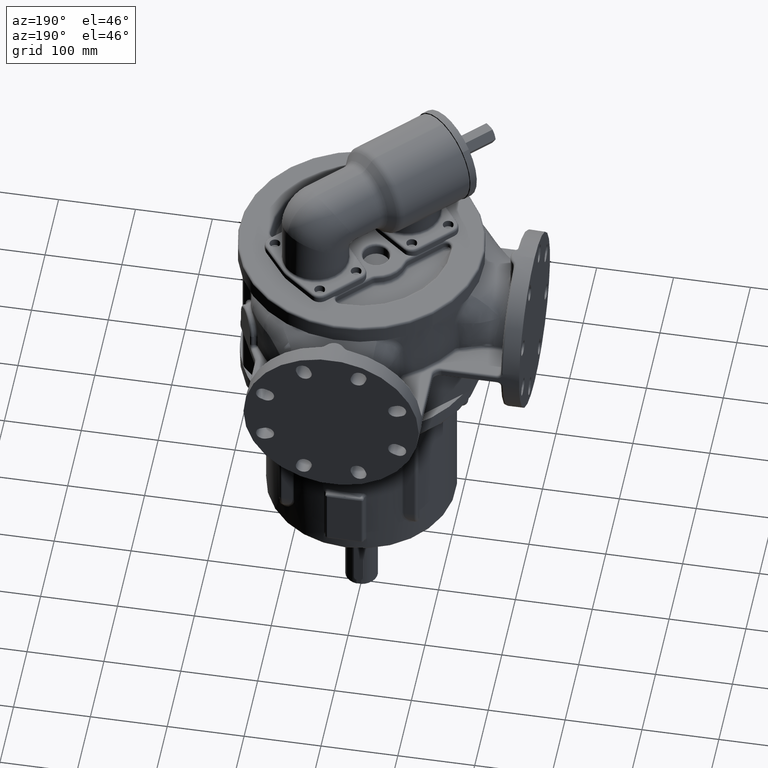
[diagram: clean part render]
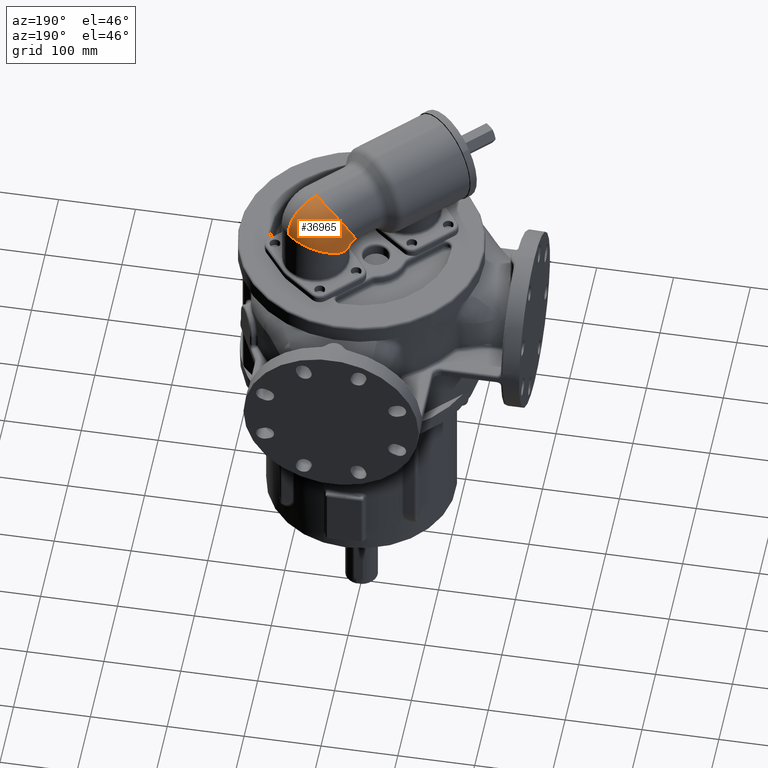
[diagram: same view with one face highlighted and labeled with its STEP entity id]
A machine part, auxiliary view. The second image highlights one B-rep face of the part: STEP entity #36965.
In plain terms, the highlighted face is a freeform B-spline surface patch.
Its self-contained STEP definition (entity closure, byte-faithful):
#3479=CARTESIAN_POINT('',(8.131727983645E1,8.131727983645E1,2.82E2));
#3480=CARTESIAN_POINT('',(8.032225917843E1,8.231230049448E1,2.82E2));
#3481=CARTESIAN_POINT('',(7.823445523306E1,8.420457561934E1,2.819220279288E2));
#3482=CARTESIAN_POINT('',(7.483961470347E1,8.672236103077E1,2.815722799795E2));
#3483=CARTESIAN_POINT('',(7.121433554473E1,8.889526970420E1,2.809931104514E2));
#3484=CARTESIAN_POINT('',(6.739353069132E1,9.070237582687E1,2.801900970636E2));
#3485=CARTESIAN_POINT('',(6.341399671277E1,9.212627584882E1,2.791709732742E2));
#3486=CARTESIAN_POINT('',(5.931405866185E1,9.315325686934E1,2.779455538021E2));
#3487=CARTESIAN_POINT('',(5.513320119259E1,9.377342849044E1,2.765256401070E2));
#3488=CARTESIAN_POINT('',(5.091168824541E1,9.398081812290E1,2.749249067338E2));
#3489=CARTESIAN_POINT('',(4.669017529837E1,9.377342849052E1,2.731587696200E2));
#3490=CARTESIAN_POINT('',(4.250931782869E1,9.315325686901E1,2.712442376315E2));
#3491=CARTESIAN_POINT('',(3.840937977933E1,9.212627585005E1,2.691997487579E2));
#3492=CARTESIAN_POINT('',(3.442984579495E1,9.070237582228E1,2.670449925447E2));
#3493=CARTESIAN_POINT('',(3.060904096327E1,8.889526972134E1,2.648007204721E2));
#3494=CARTESIAN_POINT('',(2.698376172347E1,8.672236096684E1,2.624885461071E2));
#3495=CARTESIAN_POINT('',(2.358892149641E1,8.420457585794E1,2.601307369527E2));
#3496=CARTESIAN_POINT('',(2.045721444928E1,8.136616204158E1,2.5775E2));
#3497=CARTESIAN_POINT('',(1.761880063292E1,7.823445499446E1,2.553692630473E2));
#3498=CARTESIAN_POINT('',(1.510101552402E1,7.483961476740E1,2.530114538929E2));
#3499=CARTESIAN_POINT('',(1.292810676953E1,7.121433552759E1,2.506992795278E2));
#3500=CARTESIAN_POINT('',(1.112100066858E1,6.739353069591E1,2.484550074552E2));
#3501=CARTESIAN_POINT('',(9.697100640810E0,6.341399671153E1,2.463002512420E2));
#3502=CARTESIAN_POINT('',(8.670119621851E0,5.931405866218E1,2.442557623684E2));
#3503=CARTESIAN_POINT('',(8.049948000338E0,5.513320119249E1,2.423412303799E2));
#3504=CARTESIAN_POINT('',(7.842558367958E0,5.091168824545E1,2.405750932661E2));
#3505=CARTESIAN_POINT('',(8.049948000421E0,4.669017529827E1,2.389743598929E2));
#3506=CARTESIAN_POINT('',(8.670119621524E0,4.250931782901E1,2.375544461978E2));
#3507=CARTESIAN_POINT('',(9.697100642041E0,3.840937977809E1,2.363290267258E2));
#3508=CARTESIAN_POINT('',(1.112100066400E1,3.442984579954E1,2.353099029363E2));
#3509=CARTESIAN_POINT('',(1.292810678666E1,3.060904094613E1,2.345068895485E2));
#3510=CARTESIAN_POINT('',(1.510101546009E1,2.698376178740E1,2.339277200204E2));
#3511=CARTESIAN_POINT('',(1.761880087153E1,2.358892125780E1,2.335779720711E2));
#3512=CARTESIAN_POINT('',(1.951107599639E1,2.150111731243E1,2.335E2));
#3513=CARTESIAN_POINT('',(2.050609665441E1,2.050609665441E1,2.335E2));
#3623=CARTESIAN_POINT('',(4.985102807365E1,4.985102807365E1,3.265E2));
#3624=CARTESIAN_POINT('',(5.088075875463E1,5.088075875463E1,3.265E2));
#3625=CARTESIAN_POINT('',(5.294021827353E1,5.294021827353E1,3.263569172304E2));
#3626=CARTESIAN_POINT('',(5.599965844069E1,5.599965844069E1,3.257151117151E2));
#3627=CARTESIAN_POINT('',(5.899988353989E1,5.899988353989E1,3.246523057769E2));
#3628=CARTESIAN_POINT('',(6.191200026588E1,6.191200026588E1,3.231787348179E2));
#3629=CARTESIAN_POINT('',(6.470796320801E1,6.470796320801E1,3.213085901320E2));
#3630=CARTESIAN_POINT('',(6.736084575078E1,6.736084575078E1,3.190598822350E2));
#3631=CARTESIAN_POINT('',(6.984509917545E1,6.984509917545E1,3.164542674129E2));
#3632=CARTESIAN_POINT('',(7.213679876608E1,7.213679876608E1,3.135168391612E2));
#3633=CARTESIAN_POINT('',(7.421387420215E1,7.421387420215E1,3.102758865192E2));
#3634=CARTESIAN_POINT('',(7.605632211196E1,7.605632211196E1,3.067626216337E2));
#3635=CARTESIAN_POINT('',(7.764639871490E1,7.764639871490E1,3.030108791623E2));
#3636=CARTESIAN_POINT('',(7.896879070407E1,7.896879070407E1,2.990567904497E2));
#3637=CARTESIAN_POINT('',(8.001076272172E1,8.001076272172E1,2.949384354806E2));
#3638=CARTESIAN_POINT('',(8.076228000773E1,8.076228000772E1,2.906954764551E2));
#3639=CARTESIAN_POINT('',(8.121610503979E1,8.121610503979E1,2.863687746774E2));
#3640=CARTESIAN_POINT('',(8.131727983645E1,8.131727983645E1,2.834562590946E2));
#3641=CARTESIAN_POINT('',(8.131727983645E1,8.131727983645E1,2.82E2));
#3643=CARTESIAN_POINT('',(1.767766952966E1,1.767766952966E1,2.375E2));
#3644=CARTESIAN_POINT('',(1.777022959088E1,1.777022959087E1,2.375E2));
#3645=CARTESIAN_POINT('',(1.795534838338E1,1.795534838338E1,2.374871076123E2));
#3646=CARTESIAN_POINT('',(1.823035736049E1,1.823035736049E1,2.374294634535E2));
#3647=CARTESIAN_POINT('',(1.850003190404E1,1.850003190404E1,2.373338853033E2));
#3648=CARTESIAN_POINT('',(1.876180610517E1,1.876180610517E1,2.372014736369E2));
#3649=CARTESIAN_POINT('',(1.901311405501E1,1.901311405501E1,2.370333289293E2));
#3650=CARTESIAN_POINT('',(1.925159180463E1,1.925159180463E1,2.368312382622E2));
#3651=CARTESIAN_POINT('',(1.947487540509E1,1.947487540509E1,2.365969887173E2));
#3652=CARTESIAN_POINT('',(1.968089262999E1,1.968089262999E1,2.363329852769E2));
#3653=CARTESIAN_POINT('',(1.986757125292E1,1.986757125292E1,2.360416329234E2));
#3654=CARTESIAN_POINT('',(2.003321069459E1,2.003321069459E1,2.357258622274E2));
#3655=CARTESIAN_POINT('',(2.017611037572E1,2.017611037572E1,2.353886037595E2));
#3656=CARTESIAN_POINT('',(2.029500663871E1,2.029500663871E1,2.350332006485E2));
#3657=CARTESIAN_POINT('',(2.038863582595E1,2.038863582595E1,2.346629960230E2));
#3658=CARTESIAN_POINT('',(2.045621978406E1,2.045621978406E1,2.342816186261E2));
#3659=CARTESIAN_POINT('',(2.049698035964E1,2.049698035964E1,2.338926972009E2));
#3660=CARTESIAN_POINT('',(2.050609665441E1,2.050609665441E1,2.336308996939E2));
#3661=CARTESIAN_POINT('',(2.050609665441E1,2.050609665441E1,2.335E2));
#3663=CARTESIAN_POINT('',(4.985102807365E1,4.985102807365E1,3.265E2));
#3664=CARTESIAN_POINT('',(4.882129739267E1,5.088075875463E1,3.265E2));
#3665=CARTESIAN_POINT('',(4.671011367995E1,5.288849407971E1,3.263569172304E2));
#3666=CARTESIAN_POINT('',(4.341866183910E1,5.571592257318E1,3.257151117151E2));
#3667=CARTESIAN_POINT('',(4.003423408245E1,5.833194501493E1,3.246523057769E2));
#3668=CARTESIAN_POINT('',(3.658942379687E1,6.071136818133E1,3.231787348179E2));
#3669=CARTESIAN_POINT('',(3.311740652321E1,6.283127679191E1,3.213085901320E2));
#3670=CARTESIAN_POINT('',(2.965161964971E1,6.467125500398E1,3.190598822349E2));
#3671=CARTESIAN_POINT('',(2.622544060824E1,6.621358281183E1,3.164542674129E2));
#3672=CARTESIAN_POINT('',(2.287186537331E1,6.744340675816E1,3.135168391611E2));
#3673=CARTESIAN_POINT('',(1.962319070838E1,6.834888296538E1,3.102758865193E2));
#3674=CARTESIAN_POINT('',(1.651070312619E1,6.892129120281E1,3.067626216332E2));
#3675=CARTESIAN_POINT('',(1.356437758367E1,6.915511886616E1,3.030108791641E2));
#3676=CARTESIAN_POINT('',(1.081258880640E1,6.904811406724E1,2.990567904429E2));
#3677=CARTESIAN_POINT('',(8.281838024594E0,6.860130732073E1,2.949384355056E2));
#3678=CARTESIAN_POINT('',(5.996497751729E0,6.781900161988E1,2.906954763615E2));
#3679=CARTESIAN_POINT('',(3.978577063926E0,6.670873099621E1,2.863687750266E2));
#3680=CARTESIAN_POINT('',(2.247509640517E0,6.528118796278E1,2.82E2));
#3681=CARTESIAN_POINT('',(8.199666070864E-1,6.355012053937E1,2.776312249734E2));
#3682=CARTESIAN_POINT('',(-2.903040165794E-1,6.153219985157E1,
2.733045236385E2));
#3683=CARTESIAN_POINT('',(-1.072609717439E0,5.924685957870E1,2.690615644944E2));
#3684=CARTESIAN_POINT('',(-1.519416463941E0,5.671610879690E1,2.649432095571E2));
#3685=CARTESIAN_POINT('',(-1.626421262866E0,5.396432001963E1,2.609891208359E2));
#3686=CARTESIAN_POINT('',(-1.392593599511E0,5.101799447711E1,2.572373783668E2));
#3687=CARTESIAN_POINT('',(-8.201853620814E-1,4.790550689492E1,
2.537241134807E2));
#3688=CARTESIAN_POINT('',(8.529084513460E-2,4.465683222999E1,2.504831608389E2));
#3689=CARTESIAN_POINT('',(1.315114791464E0,4.130325699505E1,2.475457325871E2));
#3690=CARTESIAN_POINT('',(2.857442599320E0,3.787707795358E1,2.449401177651E2));
#3691=CARTESIAN_POINT('',(4.697420811381E0,3.441129108009E1,2.426914098680E2));
#3692=CARTESIAN_POINT('',(6.817329421963E0,3.093927380642E1,2.408212651821E2));
#3693=CARTESIAN_POINT('',(9.196752588366E0,2.749446352085E1,2.393476942231E2));
#3694=CARTESIAN_POINT('',(1.181277503012E1,2.411003576420E1,2.382848882849E2));
#3695=CARTESIAN_POINT('',(1.464020352358E1,2.081858392334E1,2.376430827696E2));
#3696=CARTESIAN_POINT('',(1.664793884868E1,1.870740021064E1,2.375E2));
#3697=CARTESIAN_POINT('',(1.767766952966E1,1.767766952966E1,2.375E2));
#26788=VERTEX_POINT('',#3623);
#26789=VERTEX_POINT('',#3641);
#26790=VERTEX_POINT('',#3643);
#26791=VERTEX_POINT('',#3661);
#36292=CARTESIAN_POINT('',(5.051306424364E1,4.838830680384E1,3.264711516381E2));
#36293=CARTESIAN_POINT('',(4.915507422666E1,4.979753646615E1,3.265374009137E2));
#36294=CARTESIAN_POINT('',(4.670088153843E1,5.217888810569E1,3.264270302394E2));
#36295=CARTESIAN_POINT('',(4.303947961343E1,5.533550464694E1,3.257119470028E2));
#36296=CARTESIAN_POINT('',(3.966335103519E1,5.795641625319E1,3.246500131086E2));
#36297=CARTESIAN_POINT('',(3.622819616370E1,6.034143871664E1,3.231780633251E2));
#36298=CARTESIAN_POINT('',(3.276680653450E1,6.246804254846E1,3.213102321010E2));
#36299=CARTESIAN_POINT('',(2.931226853063E1,6.431609787841E1,3.190643189544E2));
#36300=CARTESIAN_POINT('',(2.589768718220E1,6.586806727218E1,3.164616565339E2));
#36301=CARTESIAN_POINT('',(2.255587282343E1,6.710913598938E1,3.135269645012E2));
#36302=CARTESIAN_POINT('',(1.931904061362E1,6.802738243536E1,3.102881567067E2));
#36303=CARTESIAN_POINT('',(1.621848302763E1,6.861388509353E1,3.067761306251E2));
#36304=CARTESIAN_POINT('',(1.328425980923E1,6.886285352205E1,3.030244945396E2));
#36305=CARTESIAN_POINT('',(1.054487231449E1,6.877169903397E1,2.990692899486E2));
#36306=CARTESIAN_POINT('',(8.026977177348E0,6.834109319639E1,2.949486039343E2));
#36307=CARTESIAN_POINT('',(5.755061359488E0,6.757501648974E1,2.907023178905E2));
#36308=CARTESIAN_POINT('',(3.751248198237E0,6.648067924414E1,2.863715130561E2));
#36309=CARTESIAN_POINT('',(2.034947542244E0,6.506857933415E1,2.819982562898E2));
#36310=CARTESIAN_POINT('',(6.228072356775E-1,6.335226895044E1,
2.776250196772E2));
#36311=CARTESIAN_POINT('',(-4.716418830999E-1,6.134839444349E1,
2.732942674126E2));
#36312=CARTESIAN_POINT('',(-1.237923353545E0,5.907636398312E1,
2.690480587223E2));
#36313=CARTESIAN_POINT('',(-1.668847841904E0,5.655828003458E1,
2.649275198075E2));
#36314=CARTESIAN_POINT('',(-1.760475576067E0,5.381863223694E1,
2.609724740369E2));
#36315=CARTESIAN_POINT('',(-1.512135674458E0,5.088406842430E1,
2.572210099129E2));
#36316=CARTESIAN_POINT('',(-9.263888843042E-1,4.778310023304E1,
2.537091256111E2));
#36317=CARTESIAN_POINT('',(-8.946098220574E-3,4.454581211372E1,
2.504703894295E2));
#36318=CARTESIAN_POINT('',(1.231403558427E0,4.120354573237E1,2.475356651366E2));
#36319=CARTESIAN_POINT('',(2.782903946937E0,3.778859116951E1,2.449328588628E2));
#36320=CARTESIAN_POINT('',(4.630908200501E0,3.433386196651E1,2.426867158044E2));
#36321=CARTESIAN_POINT('',(6.757993410052E0,3.087257856051E1,2.408186247611E2));
#36322=CARTESIAN_POINT('',(9.144043863181E0,2.743792833736E1,2.393464515841E2));
#36323=CARTESIAN_POINT('',(1.176637817138E1,2.406271735881E1,2.382843792117E2));
#36324=CARTESIAN_POINT('',(1.492419253948E1,2.040307144227E1,2.375693348443E2));
#36325=CARTESIAN_POINT('',(1.730559460085E1,1.794986702994E1,2.374589139605E2));
#36326=CARTESIAN_POINT('',(1.871406920433E1,1.659202086300E1,2.375250576718E2));
#36327=CARTESIAN_POINT('',(5.167567104946E1,4.955313816216E1,3.264916889239E2));
#36328=CARTESIAN_POINT('',(5.031428938476E1,5.095539678042E1,3.265576030160E2));
#36329=CARTESIAN_POINT('',(4.785037548664E1,5.332553706221E1,3.264472697097E2));
#36330=CARTESIAN_POINT('',(4.416702973089E1,5.646674837335E1,3.257310855466E2));
#36331=CARTESIAN_POINT('',(4.076604982639E1,5.907304171482E1,3.246662912472E2));
#36332=CARTESIAN_POINT('',(3.730205029204E1,6.144140371920E1,3.231892102210E2));
#36333=CARTESIAN_POINT('',(3.380896629020E1,6.354814232568E1,3.213141473485E2));
#36334=CARTESIAN_POINT('',(3.032092699872E1,6.537226093464E1,3.190595380002E2));
#36335=CARTESIAN_POINT('',(2.687184316361E1,6.689566241599E1,3.164476914098E2));
#36336=CARTESIAN_POINT('',(2.349507094303E1,6.810340237281E1,3.135044554269E2));
#36337=CARTESIAN_POINT('',(2.022305996437E1,6.898377804592E1,3.102588768887E2));
#36338=CARTESIAN_POINT('',(1.708707650177E1,6.952845825978E1,3.067428037424E2));
#36339=CARTESIAN_POINT('',(1.411691954178E1,6.973247384549E1,3.029905288964E2));
#36340=CARTESIAN_POINT('',(1.134070682876E1,6.959423660009E1,2.990383664461E2));
#36341=CARTESIAN_POINT('',(8.784626993598E0,6.911548763998E1,2.949243842091E2));
#36342=CARTESIAN_POINT('',(6.472824596346E0,6.830116998680E1,2.906878031711E2));
#36343=CARTESIAN_POINT('',(4.427081690374E0,6.715946361237E1,2.863690451265E2));
#36344=CARTESIAN_POINT('',(2.666883651409E0,6.570144982192E1,2.820089762965E2));
#36345=CARTESIAN_POINT('',(1.208950570183E0,6.394127134875E1,2.776488679263E2));
#36346=CARTESIAN_POINT('',(6.746883352097E-2,6.189565124512E1,
2.733300068090E2));
#36347=CARTESIAN_POINT('',(-7.464362928393E-1,5.958407876903E1,
2.690932734303E2));
#36348=CARTESIAN_POINT('',(-1.224541842727E0,5.702837912965E1,
2.649789969052E2));
#36349=CARTESIAN_POINT('',(-1.361822339368E0,5.425269263260E1,
2.610265133817E2));
#36350=CARTESIAN_POINT('',(-1.156535622058E0,5.128322660271E1,
2.572738857789E2));
#36351=CARTESIAN_POINT('',(-6.103271084263E-1,4.814807815991E1,
2.537575144880E2));
#36352=CARTESIAN_POINT('',(2.716724534305E-1,4.487699543627E1,
2.505117734146E2));
#36353=CARTESIAN_POINT('',(1.480863935129E0,4.150114336129E1,2.475685808516E2));
#36354=CARTESIAN_POINT('',(3.005210582952E0,3.805281783875E1,2.449570035325E2));
#36355=CARTESIAN_POINT('',(4.829429866834E0,3.456516470246E1,2.427028435292E2));
#36356=CARTESIAN_POINT('',(6.935194544456E0,3.107186122656E1,2.408283024939E2));
#36357=CARTESIAN_POINT('',(9.301480110058E0,2.760683404411E1,2.393516859648E2));
#36358=CARTESIAN_POINT('',(1.190490083998E1,2.420399192165E1,2.382872006996E2));
#36359=CARTESIAN_POINT('',(1.504244550741E1,2.051854518262E1,2.375712633384E2));
#36360=CARTESIAN_POINT('',(1.741104467077E1,1.805395829677E1,2.374608908651E2));
#36361=CARTESIAN_POINT('',(1.881335653072E1,1.669352735903E1,2.375266893570E2));
#36362=CARTESIAN_POINT('',(5.387071653592E1,5.175202774614E1,3.263577522739E2));
#36363=CARTESIAN_POINT('',(5.250477377573E1,5.314352284981E1,3.264247486059E2));
#36364=CARTESIAN_POINT('',(5.002557297481E1,5.549589529098E1,3.263173164954E2));
#36365=CARTESIAN_POINT('',(4.630452002744E1,5.861092779227E1,3.256034659208E2));
#36366=CARTESIAN_POINT('',(4.285934105209E1,6.119085322773E1,3.245377994191E2));
#36367=CARTESIAN_POINT('',(3.934290233478E1,6.352779971666E1,3.230562613123E2));
#36368=CARTESIAN_POINT('',(3.579127800122E1,6.559613133743E1,3.211734567438E2));
#36369=CARTESIAN_POINT('',(3.224059085423E1,6.737348532778E1,3.189088845876E2));
#36370=CARTESIAN_POINT('',(2.872635240973E1,6.884098814651E1,3.162864655409E2));
#36371=CARTESIAN_POINT('',(2.528305891740E1,6.998369592205E1,3.133339067097E2));
#36372=CARTESIAN_POINT('',(2.194374344562E1,7.079052886901E1,3.100821102846E2));
#36373=CARTESIAN_POINT('',(1.873976609901E1,7.125441434258E1,3.065644769004E2));
#36374=CARTESIAN_POINT('',(1.570057759740E1,7.137202362995E1,3.028164040506E2));
#36375=CARTESIAN_POINT('',(1.285368769500E1,7.114368286013E1,2.988746308738E2));
#36376=CARTESIAN_POINT('',(1.022449710470E1,7.057312402945E1,2.947771609948E2));
#36377=CARTESIAN_POINT('',(7.836535828622E0,6.966705540848E1,2.905621006599E2));
#36378=CARTESIAN_POINT('',(5.710963928602E0,6.843537509294E1,2.862687505481E2));
#36379=CARTESIAN_POINT('',(3.867330269432E0,6.689019131390E1,2.819359739894E2));
#36380=CARTESIAN_POINT('',(2.322440189867E0,6.504662653899E1,2.776030406874E2));
#36381=CARTESIAN_POINT('',(1.091557398472E0,6.292149728696E1,2.733092807778E2));
#36382=CARTESIAN_POINT('',(1.869292276498E-1,6.053435718577E1,
2.690936269669E2));
#36383=CARTESIAN_POINT('',(-3.814083061226E-1,5.790649753909E1,
2.649950931786E2));
#36384=CARTESIAN_POINT('',(-6.064667936314E-1,5.506141345506E1,
2.610522183381E2));
#36385=CARTESIAN_POINT('',(-4.845046705790E-1,5.202455394454E1,
2.573030247915E2));
#36386=CARTESIAN_POINT('',(-1.537930424265E-2,4.882335522058E1,
2.537845703143E2));
#36387=CARTESIAN_POINT('',(7.970395284456E-1,4.548710940460E1,
2.505325274690E2));
#36388=CARTESIAN_POINT('',(1.944765204045E0,4.204686215221E1,2.475804996137E2));
#36389=CARTESIAN_POINT('',(3.415563294300E0,3.853515871532E1,2.449593820470E2));
#36390=CARTESIAN_POINT('',(5.193307961539E0,3.498580311514E1,2.426966223897E2));
#36391=CARTESIAN_POINT('',(7.258311336657E0,3.143350864874E1,2.408156682160E2));
#36392=CARTESIAN_POINT('',(9.588102367060E0,2.791367434349E1,2.393354981322E2));
#36393=CARTESIAN_POINT('',(1.215810928936E1,2.446223169822E1,2.382703822811E2));
#36394=CARTESIAN_POINT('',(1.526150446287E1,2.073287941329E1,2.375564151309E2));
#36395=CARTESIAN_POINT('',(1.760974689387E1,1.825029571768E1,2.374486605794E2));
#36396=CARTESIAN_POINT('',(1.900261110245E1,1.688661641142E1,2.375156705763E2));
#36397=CARTESIAN_POINT('',(5.706136694408E1,5.494749423575E1,3.256859341817E2));
#36398=CARTESIAN_POINT('',(5.569374534053E1,5.632953366693E1,3.257566402585E2));
#36399=CARTESIAN_POINT('',(5.320055695421E1,5.866485318493E1,3.256573369066E2));
#36400=CARTESIAN_POINT('',(4.943476364771E1,6.174943739153E1,3.249546681213E2));
#36401=CARTESIAN_POINT('',(4.593279395405E1,6.429441789932E1,3.238970349653E2));
#36402=CARTESIAN_POINT('',(4.234579542314E1,6.658612625909E1,3.224208895939E2));
#36403=CARTESIAN_POINT('',(3.871287618694E1,6.859673134658E1,3.205411621280E2));
#36404=CARTESIAN_POINT('',(3.507308809916E1,7.030254626782E1,3.182785067829E2));
#36405=CARTESIAN_POINT('',(3.146443443179E1,7.168424126299E1,3.156585672075E2));
#36406=CARTESIAN_POINT('',(2.792331348630E1,7.272745104218E1,3.127110391505E2));
#36407=CARTESIAN_POINT('',(2.448393596786E1,7.342248694129E1,3.094687762996E2));
#36408=CARTESIAN_POINT('',(2.117814689498E1,7.376443075281E1,3.059667892530E2));
#36409=CARTESIAN_POINT('',(1.803525297287E1,7.375253492299E1,3.022415627715E2));
#36410=CARTESIAN_POINT('',(1.508218791545E1,7.338995550335E1,2.983301694059E2));
#36411=CARTESIAN_POINT('',(1.234347433148E1,7.268324451899E1,2.942703830565E2));
#36412=CARTESIAN_POINT('',(9.841870596543E0,7.164155560821E1,2.900989339761E2));
#36413=CARTESIAN_POINT('',(7.597734046312E0,7.027703009955E1,2.858537184428E2));
#36414=CARTESIAN_POINT('',(5.630565030473E0,6.860311612045E1,2.815712465551E2));
#36415=CARTESIAN_POINT('',(3.957214360603E0,6.663607314504E1,2.772884402567E2));
#36416=CARTESIAN_POINT('',(2.594166124105E0,6.439277448667E1,2.730423475213E2));
#36417=CARTESIAN_POINT('',(1.555080400323E0,6.189270502455E1,2.688696574097E2));
#36418=CARTESIAN_POINT('',(8.523143420508E-1,5.915640601458E1,
2.648078489188E2));
#36419=CARTESIAN_POINT('',(4.955065561919E-1,5.620651789878E1,
2.608945179143E2));
#36420=CARTESIAN_POINT('',(4.912425746193E-1,5.306760407896E1,
2.571675702353E2));
#36421=CARTESIAN_POINT('',(8.423914303469E-1,4.976646118941E1,
2.536647016745E2));
#36422=CARTESIAN_POINT('',(1.547291116053E0,4.633216127694E1,2.504228728600E2));
#36423=CARTESIAN_POINT('',(2.599430986847E0,4.279608905049E1,2.474773432454E2));
#36424=CARTESIAN_POINT('',(3.987067463013E0,3.919170768962E1,2.448607449455E2));
#36425=CARTESIAN_POINT('',(5.693695711753E0,3.555428000697E1,2.426020319133E2));
#36426=CARTESIAN_POINT('',(7.698484678890E0,3.192041333036E1,2.407257258551E2));
#36427=CARTESIAN_POINT('',(9.977522062031E0,2.832780623671E1,2.392513575029E2));
#36428=CARTESIAN_POINT('',(1.250488480356E1,2.481517092750E1,2.381932724424E2));
#36429=CARTESIAN_POINT('',(1.556914458855E1,2.103463568908E1,2.374882784497E2));
#36430=CARTESIAN_POINT('',(1.789756112762E1,1.853514206144E1,2.373875685906E2));
#36431=CARTESIAN_POINT('',(1.928238152444E1,1.717119023514E1,2.374588051588E2));
#36432=CARTESIAN_POINT('',(6.006083862407E1,5.795101603911E1,3.246201259541E2));
#36433=CARTESIAN_POINT('',(5.869575670015E1,5.932910388205E1,3.246944398511E2));
#36434=CARTESIAN_POINT('',(5.619630698911E1,6.165533785599E1,3.246035989121E2));
#36435=CARTESIAN_POINT('',(5.239701033383E1,6.471724029955E1,3.239154399252E2));
#36436=CARTESIAN_POINT('',(4.884810548923E1,6.723196112285E1,3.228715575970E2));
#36437=CARTESIAN_POINT('',(4.519980793331E1,6.948140947216E1,3.214094496608E2));
#36438=CARTESIAN_POINT('',(4.149398433918E1,7.143621012814E1,3.195442150326E2));
#36439=CARTESIAN_POINT('',(3.777242951210E1,7.307196230240E1,3.172972330672E2));
#36440=CARTESIAN_POINT('',(3.407558739242E1,7.436943411822E1,3.146952236358E2));
#36441=CARTESIAN_POINT('',(3.044181369437E1,7.531524569186E1,3.117691310590E2));
#36442=CARTESIAN_POINT('',(2.690667226790E1,7.590137750847E1,3.085529972688E2));
#36443=CARTESIAN_POINT('',(2.350273720158E1,7.612516778778E1,3.050827764623E2));
#36444=CARTESIAN_POINT('',(2.025947505082E1,7.598842540575E1,3.013955077359E2));
#36445=CARTESIAN_POINT('',(1.720354114027E1,7.549698268319E1,2.975282937595E2));
#36446=CARTESIAN_POINT('',(1.435887172765E1,7.465996955114E1,2.935185268740E2));
#36447=CARTESIAN_POINT('',(1.174762996669E1,7.348873740772E1,2.894017789124E2));
#36448=CARTESIAN_POINT('',(9.389534987704E0,7.199733964745E1,2.852147462719E2));
#36449=CARTESIAN_POINT('',(7.303966096203E0,7.020037764220E1,2.809921097042E2));
#36450=CARTESIAN_POINT('',(5.507786713269E0,6.811497676787E1,2.767689691456E2));
#36451=CARTESIAN_POINT('',(4.018380326747E0,6.575803294244E1,2.725806114318E2));
#36452=CARTESIAN_POINT('',(2.850578853881E0,6.314887529455E1,2.684620194589E2));
#36453=CARTESIAN_POINT('',(2.018678768013E0,6.030739945008E1,2.644494645761E2));
#36454=CARTESIAN_POINT('',(1.534644252385E0,5.725554525349E1,2.605797629152E2));
#36455=CARTESIAN_POINT('',(1.407669457191E0,5.401724520687E1,2.568906020692E2));
#36456=CARTESIAN_POINT('',(1.643263616970E0,5.061896881309E1,2.534199647123E2));
#36457=CARTESIAN_POINT('',(2.242108843747E0,4.708993765733E1,2.502054908066E2));
#36458=CARTESIAN_POINT('',(3.199518073492E0,4.346225275797E1,2.472833171401E2));
#36459=CARTESIAN_POINT('',(4.504802930158E0,3.977065865823E1,2.446869349274E2));
#36460=CARTESIAN_POINT('',(6.141759531848E0,3.605215752493E1,2.424459733255E2));
#36461=CARTESIAN_POINT('',(8.089140795144E0,3.234541124902E1,2.405853433982E2));
#36462=CARTESIAN_POINT('',(1.032221211792E1,2.869037516449E1,2.391247171629E2));
#36463=CARTESIAN_POINT('',(1.281409424069E1,2.512822320958E1,2.380784490124E2));
#36464=CARTESIAN_POINT('',(1.584980394422E1,2.131014295964E1,2.373846736977E2));
#36465=CARTESIAN_POINT('',(1.816730977306E1,1.880244451040E1,2.372909247734E2));
#36466=CARTESIAN_POINT('',(1.954910990495E1,1.744195777088E1,2.373664920817E2));
#36467=CARTESIAN_POINT('',(6.296950115028E1,6.086337340701E1,3.231445580433E2));
#36468=CARTESIAN_POINT('',(6.161045755211E1,6.224169582952E1,3.232210295223E2));
#36469=CARTESIAN_POINT('',(5.911100260638E1,6.456473625224E1,3.231370395321E2));
#36470=CARTESIAN_POINT('',(5.528695879780E1,6.760922915408E1,3.224645415831E2));
#36471=CARTESIAN_POINT('',(5.169853977158E1,7.009639996596E1,3.214384707176E2));
#36472=CARTESIAN_POINT('',(4.799564193689E1,7.230473721919E1,3.199975958864E2));
#36473=CARTESIAN_POINT('',(4.422267780542E1,7.420384133391E1,3.181570139823E2));
#36474=CARTESIAN_POINT('',(4.042404453325E1,7.576908638399E1,3.159384411266E2));
#36475=CARTESIAN_POINT('',(3.664259417561E1,7.698178421704E1,3.133691127060E2));
#36476=CARTESIAN_POINT('',(3.291869348375E1,7.782987226340E1,3.104805847179E2));
#36477=CARTESIAN_POINT('',(2.928940999892E1,7.830723273869E1,3.073074294313E2));
#36478=CARTESIAN_POINT('',(2.578825427955E1,7.841355691975E1,3.038859595282E2));
#36479=CARTESIAN_POINT('',(2.244510973070E1,7.815320946340E1,3.002532850854E2));
#36480=CARTESIAN_POINT('',(1.928660825016E1,7.753459948909E1,2.964462325328E2));
#36481=CARTESIAN_POINT('',(1.633635238666E1,7.656926815376E1,2.925016227516E2));
#36482=CARTESIAN_POINT('',(1.361607458764E1,7.527059545330E1,2.884539659267E2));
#36483=CARTESIAN_POINT('',(1.114501222210E1,7.365431416759E1,2.843388441260E2));
#36484=CARTESIAN_POINT('',(8.942395764447E0,7.173606037923E1,2.801894426046E2));
#36485=CARTESIAN_POINT('',(7.025104415392E0,6.953364205836E1,2.760393741710E2));
#36486=CARTESIAN_POINT('',(5.411199001887E0,6.706397984620E1,2.719224955979E2));
#36487=CARTESIAN_POINT('',(4.116522625911E0,6.434620818850E1,2.678724277320E2));
#36488=CARTESIAN_POINT('',(3.157039059848E0,6.139968693089E1,2.639244150463E2));
#36489=CARTESIAN_POINT('',(2.546808886515E0,5.824580275215E1,2.601145477831E2));
#36490=CARTESIAN_POINT('',(2.297473377846E0,5.490808126942E1,2.564801438684E2));
#36491=CARTESIAN_POINT('',(2.417134893310E0,5.141293140168E1,2.530591288160E2));
#36492=CARTESIAN_POINT('',(2.908944416027E0,4.779003228415E1,2.498892794991E2));
#36493=CARTESIAN_POINT('',(3.770326549658E0,4.407251189499E1,2.470069379099E2));
#36494=CARTESIAN_POINT('',(4.992104145278E0,4.029669259182E1,2.444457084324E2));
#36495=CARTESIAN_POINT('',(6.558919540211E0,3.650154466188E1,2.422351892132E2));
#36496=CARTESIAN_POINT('',(8.449690833261E0,3.272791699525E1,2.404000920173E2));
#36497=CARTESIAN_POINT('',(1.063935688162E1,2.901799332003E1,2.389598581109E2));
#36498=CARTESIAN_POINT('',(1.310040208295E1,2.541516354487E1,2.379287496835E2));
#36499=CARTESIAN_POINT('',(1.611503359603E1,2.157016586127E1,2.372465125361E2));
#36500=CARTESIAN_POINT('',(1.842826008957E1,1.906128229526E1,2.371577933615E2));
#36501=CARTESIAN_POINT('',(1.981085144481E1,1.770738421680E1,2.372364000552E2));
#36502=CARTESIAN_POINT('',(6.575993015939E1,6.365736995812E1,3.212742038738E2));
#36503=CARTESIAN_POINT('',(6.440957441187E1,6.503896446494E1,3.213503304961E2));
#36504=CARTESIAN_POINT('',(6.191516123366E1,6.736298698544E1,3.212699787747E2));
#36505=CARTESIAN_POINT('',(5.807411000339E1,7.039370170040E1,3.206123825252E2));
#36506=CARTESIAN_POINT('',(5.445321431594E1,7.285519754680E1,3.196066740681E2));
#36507=CARTESIAN_POINT('',(5.070252036823E1,7.502336247197E1,3.181928726996E2));
#36508=CARTESIAN_POINT('',(4.686870936687E1,7.686724476713E1,3.163858870275E2));
#36509=CARTESIAN_POINT('',(4.299856274941E1,7.836240935436E1,3.142073890695E2));
#36510=CARTESIAN_POINT('',(3.913722135068E1,7.949106306351E1,3.116845978069E2));
#36511=CARTESIAN_POINT('',(3.532703333340E1,8.024268953814E1,3.088490792335E2));
#36512=CARTESIAN_POINT('',(3.160664324268E1,8.061319896941E1,3.057353169325E2));
#36513=CARTESIAN_POINT('',(2.801064443918E1,8.060463526053E1,3.023794255301E2));
#36514=CARTESIAN_POINT('',(2.456954838673E1,8.022383335605E1,2.988181207266E2));
#36515=CARTESIAN_POINT('',(2.131019434360E1,7.948161492034E1,2.950876421398E2));
#36516=CARTESIAN_POINT('',(1.825609538680E1,7.839172253218E1,2.912240328062E2));
#36517=CARTESIAN_POINT('',(1.542873229216E1,7.696937062551E1,2.872607850827E2));
#36518=CARTESIAN_POINT('',(1.284703669829E1,7.523174188660E1,2.832324022883E2));
#36519=CARTESIAN_POINT('',(1.053010442404E1,7.319539787138E1,2.791708252922E2));
#36520=CARTESIAN_POINT('',(8.494863079903E0,7.087868300146E1,2.751084308578E2));
#36521=CARTESIAN_POINT('',(6.759873689928E0,6.829857403814E1,2.710778912475E2));
#36522=CARTESIAN_POINT('',(5.341848380975E0,6.547401791853E1,2.671117188811E2));
#36523=CARTESIAN_POINT('',(4.258157568105E0,6.242397952710E1,2.632442398843E2));
#36524=CARTESIAN_POINT('',(3.524712790062E0,5.916946293240E1,2.595108133476E2));
#36525=CARTESIAN_POINT('',(3.155395263750E0,5.573381119594E1,2.559482034407E2));
#36526=CARTESIAN_POINT('',(3.160777731793E0,5.214361437873E1,2.525939281239E2));
#36527=CARTESIAN_POINT('',(3.546499349023E0,4.842925972182E1,2.494853853847E2));
#36528=CARTESIAN_POINT('',(4.312260643280E0,4.462512778400E1,2.466585023823E2));
#36529=CARTESIAN_POINT('',(5.450718833825E0,4.076930641346E1,2.441463247287E2));
#36530=CARTESIAN_POINT('',(6.947783627777E0,3.690284736637E1,2.419777897674E2));
#36531=CARTESIAN_POINT('',(8.783014979267E0,3.306880968244E1,2.401768863785E2));
#36532=CARTESIAN_POINT('',(1.093145121005E1,2.931149399269E1,2.387624818670E2));
#36533=CARTESIAN_POINT('',(1.336523480684E1,2.567621663005E1,2.377486200984E2));
#36534=CARTESIAN_POINT('',(1.636435046578E1,2.181364289788E1,2.370766695899E2));
#36535=CARTESIAN_POINT('',(1.867811602467E1,1.930928741605E1,2.369895888771E2));
#36536=CARTESIAN_POINT('',(2.006421025477E1,1.796430148545E1,2.370688230382E2));
#36537=CARTESIAN_POINT('',(6.840591357469E1,6.630700103660E1,3.190274897513E2));
#36538=CARTESIAN_POINT('',(6.706592111473E1,6.769365857357E1,3.191002106338E2));
#36539=CARTESIAN_POINT('',(6.458019141531E1,7.002097156771E1,3.190194311682E2));
#36540=CARTESIAN_POINT('',(6.072862599812E1,7.303972831053E1,3.183748749435E2));
#36541=CARTESIAN_POINT('',(5.708173710506E1,7.547646891060E1,3.173911104186E2));
#36542=CARTESIAN_POINT('',(5.329001935360E1,7.760509907153E1,3.160092361674E2));
#36543=CARTESIAN_POINT('',(4.940207863764E1,7.939453726144E1,3.142437840133E2));
#36544=CARTESIAN_POINT('',(4.546678271509E1,8.082088004286E1,3.121160217072E2));
#36545=CARTESIAN_POINT('',(4.153135266038E1,8.186748347940E1,3.096526618955E2));
#36546=CARTESIAN_POINT('',(3.764000274936E1,8.252550089544E1,3.068847273071E2));
#36547=CARTESIAN_POINT('',(3.383294818667E1,8.279288794356E1,3.038460459053E2));
#36548=CARTESIAN_POINT('',(3.014594797694E1,8.267394123914E1,3.005720194993E2));
#36549=CARTESIAN_POINT('',(2.661030463878E1,8.217779325417E1,2.970985352592E2));
#36550=CARTESIAN_POINT('',(2.325326898014E1,8.131744673795E1,2.934609444094E2));
#36551=CARTESIAN_POINT('',(2.009849801584E1,8.010859034039E1,2.896943024776E2));
#36552=CARTESIAN_POINT('',(1.716741198084E1,7.856805135296E1,2.858310880658E2));
#36553=CARTESIAN_POINT('',(1.447882997822E1,7.671423366812E1,2.819047245578E2));
#36554=CARTESIAN_POINT('',(1.205176688632E1,7.456452195114E1,2.779460900141E2));
#36555=CARTESIAN_POINT('',(9.903258392574E0,7.213768567412E1,2.739865056423E2));
#36556=CARTESIAN_POINT('',(8.052231072461E0,6.945081597051E1,2.700576324310E2));
#36557=CARTESIAN_POINT('',(6.516139988188E0,6.652272312679E1,2.661910507069E2));
#36558=CARTESIAN_POINT('',(5.313510483281E0,6.337214643167E1,2.624202177399E2));
#36559=CARTESIAN_POINT('',(4.461840918891E0,6.001989859951E1,2.587797103051E2));
#36560=CARTESIAN_POINT('',(3.976997176937E0,5.648936235714E1,2.553055352614E2));
#36561=CARTESIAN_POINT('',(3.871821553251E0,5.280752338912E1,2.520344594775E2));
#36562=CARTESIAN_POINT('',(4.154352800879E0,4.900566771914E1,2.490030260894E2));
#36563=CARTESIAN_POINT('',(4.826605374992E0,4.511956665515E1,2.462461926833E2));
#36564=CARTESIAN_POINT('',(5.883258698719E0,4.118915001450E1,2.437958613523E2));
#36565=CARTESIAN_POINT('',(7.311784458814E0,3.725754653022E1,2.416797684703E2));
#36566=CARTESIAN_POINT('',(9.092754176491E0,3.336993683360E1,2.399207347218E2));
#36567=CARTESIAN_POINT('',(1.120165946651E1,2.957254141622E1,2.385367522720E2));
#36568=CARTESIAN_POINT('',(1.361056748646E1,2.591226728661E1,2.375415086361E2));
#36569=CARTESIAN_POINT('',(1.659764957058E1,2.203994245211E1,2.368778305325E2));
#36570=CARTESIAN_POINT('',(1.891480853538E1,1.954432540787E1,2.367882847342E2));
#36571=CARTESIAN_POINT('',(2.030591948434E1,1.820964999692E1,2.368651075143E2));
#36572=CARTESIAN_POINT('',(7.088264582079E1,6.878763238724E1,3.164261110871E2));
#36573=CARTESIAN_POINT('',(6.955368065922E1,7.017990753354E1,3.164923147617E2));
#36574=CARTESIAN_POINT('',(6.707880622701E1,7.251096696370E1,3.164069562064E2));
#36575=CARTESIAN_POINT('',(6.322188262393E1,7.551778899890E1,3.157733027089E2));
#36576=CARTESIAN_POINT('',(5.955484977701E1,7.792974625156E1,3.148126437480E2));
#36577=CARTESIAN_POINT('',(5.572876994491E1,8.001918043216E1,3.134669346506E2));
#36578=CARTESIAN_POINT('',(5.179376297899E1,8.175525270752E1,3.117501534434E2));
#36579=CARTESIAN_POINT('',(4.780040524686E1,8.311485702114E1,3.096828378823E2));
#36580=CARTESIAN_POINT('',(4.379770045968E1,8.408265605749E1,3.072907600662E2));
#36581=CARTESIAN_POINT('',(3.983152817726E1,8.465149099966E1,3.046039083439E2));
#36582=CARTESIAN_POINT('',(3.594358840445E1,8.482127183028E1,3.016549539407E2));
#36583=CARTESIAN_POINT('',(3.217082528315E1,8.459834862111E1,2.984781265920E2));
#36584=CARTESIAN_POINT('',(2.854544731137E1,8.399389148597E1,2.951080957146E2));
#36585=CARTESIAN_POINT('',(2.509529457993E1,8.302278573496E1,2.915790452756E2));
#36586=CARTESIAN_POINT('',(2.184439076508E1,8.170236533336E1,2.879248440769E2));
#36587=CARTESIAN_POINT('',(1.881429892986E1,8.005082157103E1,2.841769350188E2));
#36588=CARTESIAN_POINT('',(1.602393614246E1,7.808755176697E1,2.803676373231E2));
#36589=CARTESIAN_POINT('',(1.349232973718E1,7.583066834707E1,2.765268920116E2));
#36590=CARTESIAN_POINT('',(1.123671032465E1,7.329928931666E1,2.726850883593E2));
#36591=CARTESIAN_POINT('',(9.276278024355E0,7.051070543065E1,2.688729907267E2));
#36592=CARTESIAN_POINT('',(7.629120956619E0,6.748368500840E1,2.651213601194E2));
#36593=CARTESIAN_POINT('',(6.314676763341E0,6.423693979662E1,2.614627891326E2));
#36594=CARTESIAN_POINT('',(5.351747946650E0,6.079130325399E1,2.579309888869E2));
#36595=CARTESIAN_POINT('',(4.757881812304E0,5.717041802713E1,2.545609996388E2));
#36596=CARTESIAN_POINT('',(4.547911433206E0,5.340185280308E1,2.513885142074E2));
#36597=CARTESIAN_POINT('',(4.732078854955E0,4.951792332801E1,2.484487984689E2));
#36598=CARTESIAN_POINT('',(5.314624351844E0,4.555584251708E1,2.457753647209E2));
#36599=CARTESIAN_POINT('',(6.292302223135E0,4.155734757976E1,2.433984877114E2));
#36600=CARTESIAN_POINT('',(7.654314346295E0,3.756752203516E1,2.413442660310E2));
#36601=CARTESIAN_POINT('',(9.382506701989E0,3.363346798151E1,2.396339988597E2));
#36602=CARTESIAN_POINT('',(1.145310599162E1,2.980304331935E1,2.382845578023E2));
#36603=CARTESIAN_POINT('',(1.383834291728E1,2.612436392333E1,2.373091378181E2));
#36604=CARTESIAN_POINT('',(1.681480812199E1,2.224850604516E1,2.366517817579E2));
#36605=CARTESIAN_POINT('',(1.913626584564E1,1.976427053349E1,2.365557228683E2));
#36606=CARTESIAN_POINT('',(2.053271986757E1,1.844034169779E1,2.366269761259E2));
#36607=CARTESIAN_POINT('',(7.316691599616E1,7.107616162391E1,3.134948395921E2));
#36608=CARTESIAN_POINT('',(7.184867158772E1,7.247349615123E1,3.135518503221E2));
#36609=CARTESIAN_POINT('',(6.938540728007E1,7.480709684964E1,3.134584134074E2));
#36610=CARTESIAN_POINT('',(6.552697869550E1,7.780042746884E1,3.128340487258E2));
#36611=CARTESIAN_POINT('',(6.184501880309E1,8.018677978825E1,3.118977731342E2));
#36612=CARTESIAN_POINT('',(5.799110332959E1,8.223717447526E1,3.105922198041E2));
#36613=CARTESIAN_POINT('',(5.401639110935E1,8.392134061073E1,3.089306603545E2));
#36614=CARTESIAN_POINT('',(4.997271213667E1,8.521716268515E1,3.069326241644E2));
#36615=CARTESIAN_POINT('',(4.591046857115E1,8.611067300397E1,3.046225772029E2));
#36616=CARTESIAN_POINT('',(4.187692137397E1,8.659631597458E1,3.020290573831E2));
#36617=CARTESIAN_POINT('',(3.791509245331E1,8.667575863844E1,2.991831568013E2));
#36618=CARTESIAN_POINT('',(3.406306971041E1,8.635710840367E1,2.961175422815E2));
#36619=CARTESIAN_POINT('',(3.035403695351E1,8.565322849248E1,2.928653341058E2));
#36620=CARTESIAN_POINT('',(2.681657731068E1,8.458052366469E1,2.894593057509E2));
#36621=CARTESIAN_POINT('',(2.347529563486E1,8.315762951782E1,2.859319634359E2));
#36622=CARTESIAN_POINT('',(2.035211590150E1,8.140382767948E1,2.823136793049E2));
#36623=CARTESIAN_POINT('',(1.746628342785E1,7.933928451365E1,2.786356340641E2));
#36624=CARTESIAN_POINT('',(1.483697355952E1,7.698275435078E1,2.749269145713E2));
#36625=CARTESIAN_POINT('',(1.248172833286E1,7.435366457331E1,2.712170578387E2));
#36626=CARTESIAN_POINT('',(1.041997451971E1,7.146962028145E1,2.675360005672E2));
#36627=CARTESIAN_POINT('',(8.670342110918E0,6.834948881397E1,2.639137465644E2));
#36628=CARTESIAN_POINT('',(7.252949978174E0,6.501218359493E1,2.603819955330E2));
#36629=CARTESIAN_POINT('',(6.187606012630E0,6.147879424580E1,2.569734903383E2));
#36630=CARTESIAN_POINT('',(5.493190218874E0,5.777344409838E1,2.537221025174E2));
#36631=CARTESIAN_POINT('',(5.186172201927E0,5.392444759596E1,2.506621613753E2));
#36632=CARTESIAN_POINT('',(5.278695739505E0,4.996522388736E1,2.478272995909E2));
#36633=CARTESIAN_POINT('',(5.777015182834E0,4.593439352005E1,2.452492003942E2));
#36634=CARTESIAN_POINT('',(6.679879693544E0,4.187535794023E1,2.429561411954E2));
#36635=CARTESIAN_POINT('',(7.978265629502E0,3.783491804100E1,2.409722622536E2));
#36636=CARTESIAN_POINT('',(9.655451981201E0,3.386178817374E1,2.393170928498E2));
#36637=CARTESIAN_POINT('',(1.168861277285E1,3.000509826442E1,2.380062072790E2));
#36638=CARTESIAN_POINT('',(1.405035589396E1,2.631374766107E1,2.370521864728E2));
#36639=CARTESIAN_POINT('',(1.701577229971E1,2.243900236456E1,2.364000647476E2));
#36640=CARTESIAN_POINT('',(1.934067640284E1,1.996727721500E1,2.362942374457E2));
#36641=CARTESIAN_POINT('',(2.074173588062E1,1.865360955367E1,2.363571298066E2));
#36642=CARTESIAN_POINT('',(7.523727357295E1,7.315118130566E1,3.102613214059E2));
#36643=CARTESIAN_POINT('',(7.392860090081E1,7.455211840630E1,3.103073321873E2));
#36644=CARTESIAN_POINT('',(7.147646959625E1,7.688572309611E1,3.102036242561E2));
#36645=CARTESIAN_POINT('',(6.761926313730E1,7.986279248300E1,3.095881617521E2));
#36646=CARTESIAN_POINT('',(6.392705740645E1,8.222218028525E1,3.086781307416E2));
#36647=CARTESIAN_POINT('',(6.005173704224E1,8.423369634170E1,3.074167910641E2));
#36648=CARTESIAN_POINT('',(5.604496548320E1,8.586792039644E1,3.058165914543E2));
#36649=CARTESIAN_POINT('',(5.195929893547E1,8.710385291909E1,3.038958336137E2));
#36650=CARTESIAN_POINT('',(4.784607207375E1,8.792886928961E1,3.016773921638E2));
#36651=CARTESIAN_POINT('',(4.375356516500E1,8.833883453339E1,2.991880253182E2));
#36652=CARTESIAN_POINT('',(3.972588692666E1,8.833687418004E1,2.964569141165E2));
#36653=CARTESIAN_POINT('',(3.580217161069E1,8.793246483033E1,2.935148517851E2));
#36654=CARTESIAN_POINT('',(3.201660691288E1,8.713973847391E1,2.903931476673E2));
#36655=CARTESIAN_POINT('',(2.839865361467E1,8.597619646292E1,2.871229688803E2));
#36656=CARTESIAN_POINT('',(2.497370889287E1,8.446139425680E1,2.837353182976E2));
#36657=CARTESIAN_POINT('',(2.176429527568E1,8.261541019941E1,2.802594608788E2));
#36658=CARTESIAN_POINT('',(1.879024123691E1,8.045896355661E1,2.767254060678E2));
#36659=CARTESIAN_POINT('',(1.607105268809E1,7.801137904042E1,2.731614382725E2));
#36660=CARTESIAN_POINT('',(1.362473409071E1,7.529239645585E1,2.695962896928E2));
#36661=CARTESIAN_POINT('',(1.147094193334E1,7.232008428724E1,2.660591043944E2));
#36662=CARTESIAN_POINT('',(9.628780419884E0,6.911360102273E1,2.625791521952E2));
#36663=CARTESIAN_POINT('',(8.118834985148E0,6.569232698923E1,2.591871910239E2));
#36664=CARTESIAN_POINT('',(6.961608927247E0,6.207787154974E1,2.559148853613E2));
#36665=CARTESIAN_POINT('',(6.176925581188E0,5.829506483801E1,2.527947548168E2));
#36666=CARTESIAN_POINT('',(5.782466210745E0,5.437311002260E1,2.498595209449E2));
#36667=CARTESIAN_POINT('',(5.791874350975E0,5.034655091604E1,2.471409054933E2));
#36668=CARTESIAN_POINT('',(6.213087894279E0,4.625530173047E1,2.446684825163E2));
#36669=CARTESIAN_POINT('',(7.046643005276E0,4.214418125573E1,2.424682876619E2));
#36670=CARTESIAN_POINT('',(8.285215730963E0,3.806135996591E1,2.405623103085E2));
#36671=CARTESIAN_POINT('',(9.913577120454E0,3.405675100295E1,2.389681780927E2));
#36672=CARTESIAN_POINT('',(1.190999603992E1,3.018031284335E1,2.377000716547E2));
#36673=CARTESIAN_POINT('',(1.424765081882E1,2.648126417282E1,2.367698628941E2));
#36674=CARTESIAN_POINT('',(1.720010456256E1,2.261088118325E1,2.361234543638E2));
#36675=CARTESIAN_POINT('',(1.952617376932E1,2.015146575803E1,2.360060504894E2));
#36676=CARTESIAN_POINT('',(2.093025119019E1,1.884678037756E1,2.360585902236E2));
#36677=CARTESIAN_POINT('',(7.707419160925E1,7.499312797764E1,3.067558667437E2));
#36678=CARTESIAN_POINT('',(7.577329370929E1,7.639561159042E1,3.067902885101E2));
#36679=CARTESIAN_POINT('',(7.333087230523E1,7.872581215678E1,3.066759519167E2));
#36680=CARTESIAN_POINT('',(6.947677609883E1,8.168315585953E1,3.060708018627E2));
#36681=CARTESIAN_POINT('',(6.577864171967E1,8.401404649735E1,3.051898394988E2));
#36682=CARTESIAN_POINT('',(6.188834395021E1,8.598712052164E1,3.039770958638E2));
#36683=CARTESIAN_POINT('',(5.785746369781E1,8.757405527047E1,3.024441258682E2));
#36684=CARTESIAN_POINT('',(5.373869018130E1,8.875503153839E1,3.006078527169E2));
#36685=CARTESIAN_POINT('',(4.958374955985E1,8.951865833440E1,2.984893642315E2));
#36686=CARTESIAN_POINT('',(4.544150774525E1,8.986194737142E1,2.961134058568E2));
#36687=CARTESIAN_POINT('',(4.135685962064E1,8.978908944477E1,2.935070155109E2));
#36688=CARTESIAN_POINT('',(3.736983899699E1,8.931045682799E1,2.906988916899E2));
#36689=CARTESIAN_POINT('',(3.351563192911E1,8.844095277745E1,2.877183499721E2));
#36690=CARTESIAN_POINT('',(2.982469897735E1,8.719869928137E1,2.845948120118E2));
#36691=CARTESIAN_POINT('',(2.632344406920E1,8.560375845145E1,2.813576810691E2));
#36692=CARTESIAN_POINT('',(2.303525212944E1,8.367669841296E1,2.780350865187E2));
#36693=CARTESIAN_POINT('',(1.998082096736E1,8.143859007662E1,2.746558448033E2));
#36694=CARTESIAN_POINT('',(1.718022326190E1,7.890927799384E1,2.712474678356E2));
#36695=CARTESIAN_POINT('',(1.465211804354E1,7.610886628678E1,2.678379076352E2));
#36696=CARTESIAN_POINT('',(1.241645118576E1,7.305607682545E1,2.644555261154E2));
#36697=CARTESIAN_POINT('',(1.049276362580E1,6.977060916836E1,2.611288527982E2));
#36698=CARTESIAN_POINT('',(8.901915744472E0,6.627261842448E1,2.578876436939E2));
#36699=CARTESIAN_POINT('',(7.664791682373E0,6.258453208508E1,2.547623766424E2));
#36700=CARTESIAN_POINT('',(6.801734740743E0,5.873212520162E1,2.517840644279E2));
#36701=CARTESIAN_POINT('',(6.331148988021E0,5.474561949988E1,2.489836312462E2));
#36702=CARTESIAN_POINT('',(6.267681975133E0,5.066065894559E1,2.463906977855E2));
#36703=CARTESIAN_POINT('',(6.620512453992E0,4.651826410303E1,2.440325618889E2));
#36704=CARTESIAN_POINT('',(7.391634534880E0,4.236432712228E1,2.419329079860E2));
#36705=CARTESIAN_POINT('',(8.575236729345E0,3.824793653226E1,2.401115194264E2));
#36706=CARTESIAN_POINT('',(1.015754834E1,3.421969320175E1,2.385841165062E2));
#36707=CARTESIAN_POINT('',(1.211802252476E1,3.032986923907E1,2.373634796722E2));
#36708=CARTESIAN_POINT('',(1.443058756292E1,2.662750643668E1,2.364607126566E2));
#36709=CARTESIAN_POINT('',(1.736720128084E1,2.276362669416E1,2.358226323649E2));
#36710=CARTESIAN_POINT('',(1.969118661453E1,2.031527684313E1,2.356938192339E2));
#36711=CARTESIAN_POINT('',(2.109614379309E1,1.901769581406E1,2.357351633399E2));
#36712=CARTESIAN_POINT('',(7.866020916396E1,7.658443724019E1,3.030112291002E2));
#36713=CARTESIAN_POINT('',(7.736490323236E1,7.798616229907E1,3.030349327741E2));
#36714=CARTESIAN_POINT('',(7.493021176780E1,8.030921632114E1,3.029118083183E2));
#36715=CARTESIAN_POINT('',(7.108067539609E1,8.324327026289E1,3.023205622556E2));
#36716=CARTESIAN_POINT('',(6.738081466179E1,8.554436967338E1,3.014727044500E2));
#36717=CARTESIAN_POINT('',(6.348211098589E1,8.748001176630E1,3.003134237485E2));
#36718=CARTESIAN_POINT('',(5.943543114975E1,8.902319088319E1,2.988533626783E2));
#36719=CARTESIAN_POINT('',(5.529294669880E1,9.015527970022E1,2.971079904568E2));
#36720=CARTESIAN_POINT('',(5.110616744586E1,9.086593680831E1,2.950965092640E2));
#36721=CARTESIAN_POINT('',(4.692404801842E1,9.115296365035E1,2.928415217457E2));
#36722=CARTESIAN_POINT('',(4.279191156948E1,9.102113671037E1,2.903677973428E2));
#36723=CARTESIAN_POINT('',(3.875050359142E1,9.048117333596E1,2.877018150873E2));
#36724=CARTESIAN_POINT('',(3.483597716098E1,8.954818568684E1,2.848707997894E2));
#36725=CARTESIAN_POINT('',(3.107991054948E1,8.824039562958E1,2.819023521480E2));
#36726=CARTESIAN_POINT('',(2.750994043872E1,8.657793557620E1,2.788242308828E2));
#36727=CARTESIAN_POINT('',(2.415061249474E1,8.458155148247E1,2.756634162564E2));
#36728=CARTESIAN_POINT('',(2.102381960964E1,8.227248783031E1,2.724475278243E2));
#36729=CARTESIAN_POINT('',(1.815049937544E1,7.967108774627E1,2.692033200450E2));
#36730=CARTESIAN_POINT('',(1.555020697715E1,7.679792871069E1,2.659579734167E2));
#36731=CARTESIAN_POINT('',(1.324330224227E1,7.367262524062E1,2.627390604861E2));
#36732=CARTESIAN_POINT('',(1.124976383658E1,7.031573397421E1,2.595743415049E2));
#36733=CARTESIAN_POINT('',(9.590566816641E0,6.674854363271E1,2.564925060031E2));
#36734=CARTESIAN_POINT('',(8.286665315754E0,6.299464132756E1,2.535227456419E2));
#36735=CARTESIAN_POINT('',(7.358473538673E0,5.908100543993E1,2.506944466376E2));
#36736=CARTESIAN_POINT('',(6.824573820877E0,5.503900124488E1,2.480366076938E2));
#36737=CARTESIAN_POINT('',(6.700036518193E0,5.090531087651E1,2.455766527618E2));
#36738=CARTESIAN_POINT('',(6.994734711689E0,4.672180889093E1,2.433395563554E2));
#36739=CARTESIAN_POINT('',(7.711678499228E0,4.253502802213E1,2.413466840435E2));
#36740=CARTESIAN_POINT('',(8.846277496233E0,3.839442789169E1,2.396157022454E2));
#36741=CARTESIAN_POINT('',(1.038610089697E1,3.435069672760E1,2.381605511158E2));
#36742=CARTESIAN_POINT('',(1.231182582871E1,3.045384220469E1,2.369927010207E2));
#36743=CARTESIAN_POINT('',(1.459830458499E1,2.675220919322E1,2.361224711040E2));
#36744=CARTESIAN_POINT('',(1.751583242924E1,2.289626532226E1,2.354978543817E2));
#36745=CARTESIAN_POINT('',(1.983405368532E1,2.045708247845E1,2.353601379799E2));
#36746=CARTESIAN_POINT('',(2.123755190812E1,1.916439087147E1,2.353908340434E2));
#36747=CARTESIAN_POINT('',(7.998007341995E1,7.790968711411E1,2.990623727698E2));
#36748=CARTESIAN_POINT('',(7.868809143815E1,7.930848667881E1,2.990778055319E2));
#36749=CARTESIAN_POINT('',(7.625904218277E1,8.162091119342E1,2.989501051873E2));
#36750=CARTESIAN_POINT('',(7.241554618547E1,8.452867213993E1,2.983787137028E2));
#36751=CARTESIAN_POINT('',(6.871834579120E1,8.679938365607E1,2.975693186607E2));
#36752=CARTESIAN_POINT('',(6.481813822612E1,8.869951162257E1,2.964689171866E2));
#36753=CARTESIAN_POINT('',(6.076440922194E1,9.020356840336E1,2.950872767501E2));
#36754=CARTESIAN_POINT('',(5.660811360833E1,9.129408645458E1,2.934384159215E2));
#36755=CARTESIAN_POINT('',(5.239987935145E1,9.196152443087E1,2.915396525115E2));
#36756=CARTESIAN_POINT('',(4.818819872797E1,9.220404265131E1,2.894114228804E2));
#36757=CARTESIAN_POINT('',(4.401841714322E1,9.202644648771E1,2.870762128481E2));
#36758=CARTESIAN_POINT('',(3.993177193827E1,9.143917981479E1,2.845582571510E2));
#36759=CARTESIAN_POINT('',(3.596533519676E1,9.045694560043E1,2.818826821549E2));
#36760=CARTESIAN_POINT('',(3.215192577028E1,8.909750916091E1,2.790752592255E2));
#36761=CARTESIAN_POINT('',(2.852065980617E1,8.738062284516E1,2.761621124590E2));
#36762=CARTESIAN_POINT('',(2.509758568777E1,8.532690260318E1,2.731690778555E2));
#36763=CARTESIAN_POINT('',(2.190616583663E1,8.295762072843E1,2.701225955546E2));
#36764=CARTESIAN_POINT('',(1.896857197830E1,8.029363606703E1,2.670486661903E2));
#36765=CARTESIAN_POINT('',(1.630555561018E1,7.735617477564E1,2.639736949299E2));
#36766=CARTESIAN_POINT('',(1.393808911460E1,7.416604167033E1,2.609244435451E2));
#36767=CARTESIAN_POINT('',(1.188663748674E1,7.074504169712E1,2.579278548785E2));
#36768=CARTESIAN_POINT('',(1.017217066609E1,6.711601610139E1,2.550114865038E2));
#36769=CARTESIAN_POINT('',(8.815414774370E0,6.330410534261E1,2.522031565873E2));
#36770=CARTESIAN_POINT('',(7.836389289255E0,5.933777897056E1,2.495305436945E2));
#36771=CARTESIAN_POINT('',(7.253263722794E0,5.524967509246E1,2.470206578806E2));
#36772=CARTESIAN_POINT('',(7.080873685959E0,5.107742368235E1,2.446987286372E2));
#36773=CARTESIAN_POINT('',(7.329145340604E0,4.686344501083E1,2.425874834514E2));
#36774=CARTESIAN_POINT('',(8.001559044034E0,4.265439995723E1,2.407061467074E2));
#36775=CARTESIAN_POINT('',(9.094359149463E0,3.849948596820E1,2.390705047418E2));
#36776=CARTESIAN_POINT('',(1.059626095495E1,3.444879809021E1,2.376929811661E2));
#36777=CARTESIAN_POINT('',(1.248916459326E1,3.055144748343E1,2.365839265332E2));
#36778=CARTESIAN_POINT('',(1.474902412179E1,2.685454739960E1,2.357529051953E2));
#36779=CARTESIAN_POINT('',(1.764451205324E1,2.300773306330E1,2.351495854438E2));
#36780=CARTESIAN_POINT('',(1.995345136043E1,2.057561316005E1,2.350079831366E2));
#36781=CARTESIAN_POINT('',(2.135333831970E1,1.928555950561E1,2.350300855633E2));
#36782=CARTESIAN_POINT('',(8.102086308569E1,7.895574730813E1,2.949462256130E2));
#36783=CARTESIAN_POINT('',(7.973018470577E1,8.034997789997E1,2.949573917071E2));
#36784=CARTESIAN_POINT('',(7.730508135855E1,8.264913632019E1,2.948316634272E2));
#36785=CARTESIAN_POINT('',(7.346966391341E1,8.552880434857E1,2.942883820265E2));
#36786=CARTESIAN_POINT('',(6.978003517392E1,8.776966563483E1,2.935240788875E2));
#36787=CARTESIAN_POINT('',(6.588577387443E1,8.963741215757E1,2.924884683813E2));
#36788=CARTESIAN_POINT('',(6.183429215097E1,9.110826663757E1,2.911905363316E2));
#36789=CARTESIAN_POINT('',(5.767459042478E1,9.216585525697E1,2.896429330330E2));
#36790=CARTESIAN_POINT('',(5.345570135182E1,9.280113145100E1,2.878611935153E2));
#36791=CARTESIAN_POINT('',(4.922505936005E1,9.301211937094E1,2.858636711096E2));
#36792=CARTESIAN_POINT('',(4.502758767426E1,9.280302895773E1,2.836706632844E2));
#36793=CARTESIAN_POINT('',(4.090477340238E1,9.218335382419E1,2.813042357524E2));
#36794=CARTESIAN_POINT('',(3.689455264817E1,9.116672362532E1,2.787874982859E2));
#36795=CARTESIAN_POINT('',(3.303112235626E1,8.976986473378E1,2.761444518551E2));
#36796=CARTESIAN_POINT('',(2.934535526439E1,8.801169476658E1,2.733996508944E2));
#36797=CARTESIAN_POINT('',(2.586519778690E1,8.591240565235E1,2.705778105684E2));
#36798=CARTESIAN_POINT('',(2.261611472676E1,8.349319375661E1,2.677042306294E2));
#36799=CARTESIAN_POINT('',(1.962196194446E1,8.077549890420E1,2.648041503074E2));
#36800=CARTESIAN_POINT('',(1.690505568624E1,7.778144722950E1,2.619031833600E2));
#36801=CARTESIAN_POINT('',(1.448726322783E1,7.453339959619E1,2.590272453836E2));
#36802=CARTESIAN_POINT('',(1.238964180652E1,7.105488541150E1,2.562023947082E2));
#36803=CARTESIAN_POINT('',(1.063308663549E1,6.737078714458E1,2.534549907621E2));
#36804=CARTESIAN_POINT('',(9.237820372224E0,6.350825427273E1,2.508114033236E2));
#36805=CARTESIAN_POINT('',(8.222995275029E0,5.949757448626E1,2.482975610837E2));
#36806=CARTESIAN_POINT('',(7.605740095368E0,5.537280200439E1,2.459384874715E2));
#36807=CARTESIAN_POINT('',(7.399931516961E0,5.117240567516E1,2.437573179514E2));
#36808=CARTESIAN_POINT('',(7.614822522227E0,4.693899699532E1,2.417747329085E2));
#36809=CARTESIAN_POINT('',(8.253723935882E0,4.271878259477E1,2.400081387365E2));
#36810=CARTESIAN_POINT('',(9.313243183592E0,3.855998787857E1,2.384718264877E2));
#36811=CARTESIAN_POINT('',(1.078298215947E1,3.451136370370E1,2.371771034275E2));
#36812=CARTESIAN_POINT('',(1.264603210263E1,3.062044832474E1,2.361334909192E2));
#36813=CARTESIAN_POINT('',(1.487963997528E1,2.693258371741E1,2.353498747388E2));
#36814=CARTESIAN_POINT('',(1.775106813304E1,2.309638020502E1,2.347783297069E2));
#36815=CARTESIAN_POINT('',(2.004795672584E1,2.066951273817E1,2.346403353520E2));
#36816=CARTESIAN_POINT('',(2.144265169159E1,1.938014176139E1,2.346573863581E2));
#36817=CARTESIAN_POINT('',(8.177211080014E1,7.971191671219E1,2.907014153836E2));
#36818=CARTESIAN_POINT('',(8.048129619064E1,8.110082374503E1,2.907137185288E2));
#36819=CARTESIAN_POINT('',(7.805933546478E1,8.338548194094E1,2.905986007872E2));
#36820=CARTESIAN_POINT('',(7.423512793452E1,8.623706791854E1,2.900937068350E2));
#36821=CARTESIAN_POINT('',(7.055885876872E1,8.845016303958E1,2.893821896822E2));
#36822=CARTESIAN_POINT('',(6.667877485700E1,9.029016414149E1,2.884176158747E2));
#36823=CARTESIAN_POINT('',(6.263950590818E1,9.173519728932E1,2.872083356612E2));
#36824=CARTESIAN_POINT('',(5.848733092959E1,9.276989172215E1,2.857657890376E2));
#36825=CARTESIAN_POINT('',(5.426893517735E1,9.338534394511E1,2.841039267293E2));
#36826=CARTESIAN_POINT('',(5.003006463873E1,9.357889204467E1,2.822392056116E2));
#36827=CARTESIAN_POINT('',(4.581474684687E1,9.335346803182E1,2.801899370585E2));
#36828=CARTESIAN_POINT('',(4.166446368295E1,9.271688956360E1,2.779761897061E2));
#36829=CARTESIAN_POINT('',(3.761796264958E1,9.168101217264E1,2.756192246861E2));
#36830=CARTESIAN_POINT('',(3.371098027777E1,9.026092426714E1,2.731413953989E2));
#36831=CARTESIAN_POINT('',(2.997646277146E1,8.847425909520E1,2.705658031977E2));
#36832=CARTESIAN_POINT('',(2.644471256458E1,8.634051370657E1,2.679160809887E2));
#36833=CARTESIAN_POINT('',(2.314369743605E1,8.388075615665E1,2.652164452972E2));
#36834=CARTESIAN_POINT('',(2.009949750093E1,8.111712996031E1,2.624913517329E2));
#36835=CARTESIAN_POINT('',(1.733643980646E1,7.807299785145E1,2.597655908700E2));
#36836=CARTESIAN_POINT('',(1.487766193542E1,7.477271992395E1,2.570641793098E2));
#36837=CARTESIAN_POINT('',(1.274498592890E1,7.124212046196E1,2.544122013758E2));
#36838=CARTESIAN_POINT('',(1.095922218548E1,6.750869098304E1,2.518347480218E2));
#36839=CARTESIAN_POINT('',(9.539846334525E0,6.360211693141E1,2.493566747409E2));
#36840=CARTESIAN_POINT('',(8.504673398224E0,5.955487958016E1,2.470021535593E2));
#36841=CARTESIAN_POINT('',(7.869135920845E0,5.540261587457E1,2.447942850544E2));
#36842=CARTESIAN_POINT('',(7.645370181045E0,5.118451527041E1,2.427543058242E2));
#36843=CARTESIAN_POINT('',(7.841154046970E0,4.694298912867E1,2.409011692716E2));
#36844=CARTESIAN_POINT('',(8.458904292039E0,4.272314681617E1,2.392509290860E2));
#36845=CARTESIAN_POINT('',(9.495043787009E0,3.857146456768E1,2.378169103575E2));
#36846=CARTESIAN_POINT('',(1.093974513168E1,3.453453691299E1,2.366098373759E2));
#36847=CARTESIAN_POINT('',(1.277723717425E1,3.065761783768E1,2.356387898674E2));
#36848=CARTESIAN_POINT('',(1.498627365135E1,2.698374275992E1,2.349120942386E2));
#36849=CARTESIAN_POINT('',(1.783316387349E1,2.316045459277E1,2.343851626509E2));
#36850=CARTESIAN_POINT('',(2.011653813607E1,2.073782418664E1,2.342605009283E2));
#36851=CARTESIAN_POINT('',(2.150539729188E1,1.944780957412E1,2.342773728568E2));
#36852=CARTESIAN_POINT('',(8.224516866966E1,8.018950615536E1,2.861840674602E2));
#36853=CARTESIAN_POINT('',(8.095365038342E1,8.157332687028E1,2.862043460500E2));
#36854=CARTESIAN_POINT('',(7.853556369893E1,8.384353110226E1,2.861110070700E2));
#36855=CARTESIAN_POINT('',(7.472798668492E1,8.666825898397E1,2.856584223868E2));
#36856=CARTESIAN_POINT('',(7.107294905174E1,8.885653144773E1,2.850106858196E2));
#36857=CARTESIAN_POINT('',(6.721727769117E1,9.067422968643E1,2.841267368894E2));
#36858=CARTESIAN_POINT('',(6.320195497583E1,9.210167482194E1,2.830144634742E2));
#36859=CARTESIAN_POINT('',(5.906960195616E1,9.312443061804E1,2.816842804157E2));
#36860=CARTESIAN_POINT('',(5.486364165960E1,9.373333675914E1,2.801487878100E2));
#36861=CARTESIAN_POINT('',(5.062737510738E1,9.392439480629E1,2.784227607985E2));
#36862=CARTESIAN_POINT('',(4.640338127971E1,9.369844156135E1,2.765227557497E2));
#36863=CARTESIAN_POINT('',(4.223286640682E1,9.306074919506E1,2.744670325052E2));
#36864=CARTESIAN_POINT('',(3.815538051159E1,9.202056409603E1,2.722751829476E2));
#36865=CARTESIAN_POINT('',(3.420846747290E1,9.059063448629E1,2.699680306366E2));
#36866=CARTESIAN_POINT('',(3.042761579763E1,8.878680033302E1,2.675673305256E2));
#36867=CARTESIAN_POINT('',(2.684613576666E1,8.662758517638E1,2.650956363538E2));
#36868=CARTESIAN_POINT('',(2.349520589643E1,8.413393132111E1,2.625761069471E2));
#36869=CARTESIAN_POINT('',(2.040389101661E1,8.132891272073E1,2.600323356358E2));
#36870=CARTESIAN_POINT('',(1.759916928324E1,7.823763011533E1,2.574881984048E2));
#36871=CARTESIAN_POINT('',(1.510599994522E1,7.488707946488E1,2.549676945010E2));
#36872=CARTESIAN_POINT('',(1.294726074329E1,7.130617928974E1,2.524947692850E2));
#36873=CARTESIAN_POINT('',(1.114373426559E1,6.752582436834E1,2.500931067859E2));
#36874=CARTESIAN_POINT('',(9.713905822813E0,6.357897643343E1,2.477859176422E2));
#36875=CARTESIAN_POINT('',(8.673718135621E0,5.950085441715E1,2.455955655337E2));
#36876=CARTESIAN_POINT('',(8.036132683033E0,5.532895224728E1,2.435432704463E2));
#36877=CARTESIAN_POINT('',(7.810606174503E0,5.110308666384E1,2.416485847289E2));
#36878=CARTESIAN_POINT('',(8.002472974593E0,4.686502306065E1,2.399291135241E2));
#36879=CARTESIAN_POINT('',(8.612383342850E0,4.265800254951E1,2.384001265781E2));
#36880=CARTESIAN_POINT('',(9.635926780156E0,3.852580680303E1,2.370746374814E2));
#36881=CARTESIAN_POINT('',(1.106349181403E1,3.451188124905E1,2.359634506537E2));
#36882=CARTESIAN_POINT('',(1.288042397437E1,3.065832971810E1,2.350756834993E2));
#36883=CARTESIAN_POINT('',(1.506730343499E1,2.700523881250E1,2.344192414137E2));
#36884=CARTESIAN_POINT('',(1.789023955400E1,2.319921538781E1,2.339541325669E2));
#36885=CARTESIAN_POINT('',(2.015984667896E1,2.078127653510E1,2.338553655880E2));
#36886=CARTESIAN_POINT('',(2.154325084089E1,1.949019792653E1,2.338782146888E2));
#36887=CARTESIAN_POINT('',(8.233865026872E1,8.028548955586E1,2.830753949762E2));
#36888=CARTESIAN_POINT('',(8.104713708377E1,8.166727011664E1,2.831065432788E2));
#36889=CARTESIAN_POINT('',(7.863347669481E1,8.392979975702E1,2.830365430028E2));
#36890=CARTESIAN_POINT('',(7.484235358973E1,8.674002616044E1,2.826290506594E2));
#36891=CARTESIAN_POINT('',(7.120819770586E1,8.891598440699E1,2.820311946854E2));
#36892=CARTESIAN_POINT('',(6.737702628957E1,9.072470446495E1,2.812066160873E2));
#36893=CARTESIAN_POINT('',(6.338679999406E1,9.214816570321E1,2.801630603950E2));
#36894=CARTESIAN_POINT('',(5.927704739574E1,9.317248060602E1,2.789104608696E2));
#36895=CARTESIAN_POINT('',(5.508836543876E1,9.378799738442E1,2.774607772793E2));
#36896=CARTESIAN_POINT('',(5.086188196190E1,9.398932947832E1,2.758279199271E2));
#36897=CARTESIAN_POINT('',(4.663880811422E1,9.377530444796E1,2.740275478654E2));
#36898=CARTESIAN_POINT('',(4.245996935139E1,9.314886033967E1,2.720769486171E2));
#36899=CARTESIAN_POINT('',(3.836544402010E1,9.211690331255E1,2.699948177034E2));
#36900=CARTESIAN_POINT('',(3.439418194761E1,9.069013135087E1,2.678011096098E2));
#36901=CARTESIAN_POINT('',(3.058371852045E1,8.888285155595E1,2.655168117780E2));
#36902=CARTESIAN_POINT('',(2.696986859514E1,8.671277442949E1,2.631637783724E2));
#36903=CARTESIAN_POINT('',(2.358649305792E1,8.420081323986E1,2.607645017584E2));
#36904=CARTESIAN_POINT('',(2.046524892446E1,8.137087262237E1,2.583419324389E2));
#36905=CARTESIAN_POINT('',(1.763538979502E1,7.824963671898E1,2.559192591825E2));
#36906=CARTESIAN_POINT('',(1.512355618553E1,7.486636412652E1,2.535197056395E2));
#36907=CARTESIAN_POINT('',(1.295359319932E1,7.125266915438E1,2.511663236910E2));
#36908=CARTESIAN_POINT('',(1.114636522554E1,6.744232779137E1,2.488817635948E2));
#36909=CARTESIAN_POINT('',(9.719566859145E0,6.347105394336E1,2.466880635278E2));
#36910=CARTESIAN_POINT('',(8.687534974349E0,5.937630363775E1,2.446063879572E2));
#36911=CARTESIAN_POINT('',(8.061032808807E0,5.519701340123E1,2.426568014371E2));
#36912=CARTESIAN_POINT('',(7.847037006878E0,5.097334198484E1,2.408579832884E2));
#36913=CARTESIAN_POINT('',(8.048519293956E0,4.674628310210E1,2.392270268452E2));
#36914=CARTESIAN_POINT('',(8.664272540641E0,4.255724910967E1,2.377792164376E2));
#36915=CARTESIAN_POINT('',(9.688810260812E0,3.844751966210E1,2.365279535825E2));
#36916=CARTESIAN_POINT('',(1.111236309048E1,3.445771181864E1,2.354846829572E2));
#36917=CARTESIAN_POINT('',(1.292098177802E1,3.062721579250E1,2.346589686894E2));
#36918=CARTESIAN_POINT('',(1.509670304708E1,2.699373369467E1,2.340585671157E2));
#36919=CARTESIAN_POINT('',(1.790633804011E1,2.320356443865E1,2.336474657578E2));
#36920=CARTESIAN_POINT('',(2.016841756341E1,2.079029999973E1,2.335758685754E2));
#36921=CARTESIAN_POINT('',(2.154968643742E1,1.949913973750E1,2.336077230233E2));
#36922=CARTESIAN_POINT('',(8.232347678926E1,8.027144661860E1,2.814279855844E2));
#36923=CARTESIAN_POINT('',(8.103243629766E1,8.165292134850E1,2.814664700625E2));
#36924=CARTESIAN_POINT('',(7.862213401596E1,8.391256896504E1,2.814112886716E2));
#36925=CARTESIAN_POINT('',(7.484175544846E1,8.671685287801E1,2.810303494454E2));
#36926=CARTESIAN_POINT('',(7.122089713097E1,8.888809512607E1,2.804606559386E2));
#36927=CARTESIAN_POINT('',(6.740525805328E1,9.069424832059E1,2.796686306112E2));
#36928=CARTESIAN_POINT('',(6.343104694323E1,9.211822217502E1,2.786619976179E2));
#36929=CARTESIAN_POINT('',(5.933598200587E1,9.314639473255E1,2.774505067981E2));
#36930=CARTESIAN_POINT('',(5.515898797170E1,9.376875879755E1,2.760458730500E2));
#36931=CARTESIAN_POINT('',(5.093989452896E1,9.397904968753E1,2.744616445698E2));
#36932=CARTESIAN_POINT('',(4.671907870895E1,9.377485740184E1,2.727131068446E2));
#36933=CARTESIAN_POINT('',(4.253711190936E1,9.315770725719E1,2.708171208374E2));
#36934=CARTESIAN_POINT('',(3.843435315784E1,9.213310281064E1,2.687919879096E2));
#36935=CARTESIAN_POINT('',(3.445055770818E1,9.071052796688E1,2.666572585755E2));
#36936=CARTESIAN_POINT('',(3.062444937733E1,8.890339590454E1,2.644335606754E2));
#36937=CARTESIAN_POINT('',(2.699331907111E1,8.672895453190E1,2.621423840961E2));
#36938=CARTESIAN_POINT('',(2.359261032408E1,8.420813494153E1,2.598058803837E2));
#36939=CARTESIAN_POINT('',(2.045553820288E1,8.136535630355E1,2.574466332275E2));
#36940=CARTESIAN_POINT('',(1.761271830294E1,7.822827994905E1,2.550874383339E2));
#36941=CARTESIAN_POINT('',(1.509183354375E1,7.482751895492E1,2.527510738569E2));
#36942=CARTESIAN_POINT('',(1.291733264507E1,7.119630974553E1,2.504600726500E2));
#36943=CARTESIAN_POINT('',(1.111017092156E1,6.737013810849E1,2.482365077488E2));
#36944=CARTESIAN_POINT('',(9.687603768509E0,6.338634551343E1,2.461017762517E2));
#36945=CARTESIAN_POINT('',(8.663029453206E0,5.928369539905E1,2.440764174028E2));
#36946=CARTESIAN_POINT('',(8.045899542982E0,5.510194979701E1,2.421799261137E2));
#36947=CARTESIAN_POINT('',(7.841683241305E0,5.088142777576E1,2.404306113884E2));
#36948=CARTESIAN_POINT('',(8.051890552348E0,4.666261708321E1,2.388454310004E2));
#36949=CARTESIAN_POINT('',(8.674130772156E0,4.248579490778E1,2.374398579202E2));
#36950=CARTESIAN_POINT('',(9.702191198299E0,3.839071614910E1,2.362276953234E2));
#36951=CARTESIAN_POINT('',(1.112612482672E1,3.441629681644E1,2.352209166016E2));
#36952=CARTESIAN_POINT('',(1.293234076885E1,3.060032555436E1,2.344294571442E2));
#36953=CARTESIAN_POINT('',(1.510371825437E1,2.697914067792E1,2.338610362629E2));
#36954=CARTESIAN_POINT('',(1.790776489363E1,2.319904404452E1,2.334819796413E2));
#36955=CARTESIAN_POINT('',(2.016692705260E1,2.078915924952E1,2.334275547069E2));
#36956=CARTESIAN_POINT('',(2.154789477907E1,1.949848165134E1,2.334655990600E2));
#36957=B_SPLINE_SURFACE_WITH_KNOTS('',3,3,((#36292,#36293,#36294,#36295,#36296,
#36297,#36298,#36299,#36300,#36301,#36302,#36303,#36304,#36305,#36306,#36307,
#36308,#36309,#36310,#36311,#36312,#36313,#36314,#36315,#36316,#36317,#36318,
#36319,#36320,#36321,#36322,#36323,#36324,#36325,#36326),(#36327,#36328,#36329,
#36330,#36331,#36332,#36333,#36334,#36335,#36336,#36337,#36338,#36339,#36340,
#36341,#36342,#36343,#36344,#36345,#36346,#36347,#36348,#36349,#36350,#36351,
#36352,#36353,#36354,#36355,#36356,#36357,#36358,#36359,#36360,#36361),(#36362,
#36363,#36364,#36365,#36366,#36367,#36368,#36369,#36370,#36371,#36372,#36373,
#36374,#36375,#36376,#36377,#36378,#36379,#36380,#36381,#36382,#36383,#36384,
#36385,#36386,#36387,#36388,#36389,#36390,#36391,#36392,#36393,#36394,#36395,
#36396),(#36397,#36398,#36399,#36400,#36401,#36402,#36403,#36404,#36405,#36406,
#36407,#36408,#36409,#36410,#36411,#36412,#36413,#36414,#36415,#36416,#36417,
#36418,#36419,#36420,#36421,#36422,#36423,#36424,#36425,#36426,#36427,#36428,
#36429,#36430,#36431),(#36432,#36433,#36434,#36435,#36436,#36437,#36438,#36439,
#36440,#36441,#36442,#36443,#36444,#36445,#36446,#36447,#36448,#36449,#36450,
#36451,#36452,#36453,#36454,#36455,#36456,#36457,#36458,#36459,#36460,#36461,
#36462,#36463,#36464,#36465,#36466),(#36467,#36468,#36469,#36470,#36471,#36472,
#36473,#36474,#36475,#36476,#36477,#36478,#36479,#36480,#36481,#36482,#36483,
#36484,#36485,#36486,#36487,#36488,#36489,#36490,#36491,#36492,#36493,#36494,
#36495,#36496,#36497,#36498,#36499,#36500,#36501),(#36502,#36503,#36504,#36505,
#36506,#36507,#36508,#36509,#36510,#36511,#36512,#36513,#36514,#36515,#36516,
#36517,#36518,#36519,#36520,#36521,#36522,#36523,#36524,#36525,#36526,#36527,
#36528,#36529,#36530,#36531,#36532,#36533,#36534,#36535,#36536),(#36537,#36538,
#36539,#36540,#36541,#36542,#36543,#36544,#36545,#36546,#36547,#36548,#36549,
#36550,#36551,#36552,#36553,#36554,#36555,#36556,#36557,#36558,#36559,#36560,
#36561,#36562,#36563,#36564,#36565,#36566,#36567,#36568,#36569,#36570,#36571),(
#36572,#36573,#36574,#36575,#36576,#36577,#36578,#36579,#36580,#36581,#36582,
#36583,#36584,#36585,#36586,#36587,#36588,#36589,#36590,#36591,#36592,#36593,
#36594,#36595,#36596,#36597,#36598,#36599,#36600,#36601,#36602,#36603,#36604,
#36605,#36606),(#36607,#36608,#36609,#36610,#36611,#36612,#36613,#36614,#36615,
#36616,#36617,#36618,#36619,#36620,#36621,#36622,#36623,#36624,#36625,#36626,
#36627,#36628,#36629,#36630,#36631,#36632,#36633,#36634,#36635,#36636,#36637,
#36638,#36639,#36640,#36641),(#36642,#36643,#36644,#36645,#36646,#36647,#36648,
#36649,#36650,#36651,#36652,#36653,#36654,#36655,#36656,#36657,#36658,#36659,
#36660,#36661,#36662,#36663,#36664,#36665,#36666,#36667,#36668,#36669,#36670,
#36671,#36672,#36673,#36674,#36675,#36676),(#36677,#36678,#36679,#36680,#36681,
#36682,#36683,#36684,#36685,#36686,#36687,#36688,#36689,#36690,#36691,#36692,
#36693,#36694,#36695,#36696,#36697,#36698,#36699,#36700,#36701,#36702,#36703,
#36704,#36705,#36706,#36707,#36708,#36709,#36710,#36711),(#36712,#36713,#36714,
#36715,#36716,#36717,#36718,#36719,#36720,#36721,#36722,#36723,#36724,#36725,
#36726,#36727,#36728,#36729,#36730,#36731,#36732,#36733,#36734,#36735,#36736,
#36737,#36738,#36739,#36740,#36741,#36742,#36743,#36744,#36745,#36746),(#36747,
#36748,#36749,#36750,#36751,#36752,#36753,#36754,#36755,#36756,#36757,#36758,
#36759,#36760,#36761,#36762,#36763,#36764,#36765,#36766,#36767,#36768,#36769,
#36770,#36771,#36772,#36773,#36774,#36775,#36776,#36777,#36778,#36779,#36780,
#36781),(#36782,#36783,#36784,#36785,#36786,#36787,#36788,#36789,#36790,#36791,
#36792,#36793,#36794,#36795,#36796,#36797,#36798,#36799,#36800,#36801,#36802,
#36803,#36804,#36805,#36806,#36807,#36808,#36809,#36810,#36811,#36812,#36813,
#36814,#36815,#36816),(#36817,#36818,#36819,#36820,#36821,#36822,#36823,#36824,
#36825,#36826,#36827,#36828,#36829,#36830,#36831,#36832,#36833,#36834,#36835,
#36836,#36837,#36838,#36839,#36840,#36841,#36842,#36843,#36844,#36845,#36846,
#36847,#36848,#36849,#36850,#36851),(#36852,#36853,#36854,#36855,#36856,#36857,
#36858,#36859,#36860,#36861,#36862,#36863,#36864,#36865,#36866,#36867,#36868,
#36869,#36870,#36871,#36872,#36873,#36874,#36875,#36876,#36877,#36878,#36879,
#36880,#36881,#36882,#36883,#36884,#36885,#36886),(#36887,#36888,#36889,#36890,
#36891,#36892,#36893,#36894,#36895,#36896,#36897,#36898,#36899,#36900,#36901,
#36902,#36903,#36904,#36905,#36906,#36907,#36908,#36909,#36910,#36911,#36912,
#36913,#36914,#36915,#36916,#36917,#36918,#36919,#36920,#36921),(#36922,#36923,
#36924,#36925,#36926,#36927,#36928,#36929,#36930,#36931,#36932,#36933,#36934,
#36935,#36936,#36937,#36938,#36939,#36940,#36941,#36942,#36943,#36944,#36945,
#36946,#36947,#36948,#36949,#36950,#36951,#36952,#36953,#36954,#36955,#36956)),
.UNSPECIFIED.,.F.,.F.,.F.,(4,1,1,1,1,1,1,1,1,1,1,1,1,1,1,1,4),(4,1,1,1,1,1,1,1,
1,1,1,1,1,1,1,1,1,1,1,1,1,1,1,1,1,1,1,1,1,1,1,1,4),(-7.886658212964E-3,6.25E-2,
1.25E-1,1.875E-1,2.5E-1,3.125E-1,3.75E-1,4.375E-1,5.E-1,5.625E-1,6.25E-1,
6.875E-1,7.5E-1,8.125E-1,8.75E-1,9.375E-1,1.007957780545E0),(-1.074522027039E-2,
3.125E-2,6.25E-2,9.375E-2,1.25E-1,1.5625E-1,1.875E-1,2.1875E-1,2.5E-1,2.8125E-1,
3.125E-1,3.4375E-1,3.75E-1,4.0625E-1,4.375E-1,4.6875E-1,5.E-1,5.3125E-1,
5.625E-1,5.9375E-1,6.25E-1,6.5625E-1,6.875E-1,7.1875E-1,7.5E-1,7.8125E-1,
8.125E-1,8.4375E-1,8.75E-1,9.0625E-1,9.375E-1,9.6875E-1,1.010731519084E0),
.UNSPECIFIED.);
#36958=ORIENTED_EDGE('',*,*,#36282,.F.);
#36960=ORIENTED_EDGE('',*,*,#36959,.T.);
#36961=ORIENTED_EDGE('',*,*,#36285,.T.);
#36962=ORIENTED_EDGE('',*,*,#35590,.F.);
#36963=EDGE_LOOP('',(#36958,#36960,#36961,#36962));
#36964=FACE_OUTER_BOUND('',#36963,.F.);
#36965=ADVANCED_FACE('',(#36964),#36957,.T.);
#3514=B_SPLINE_CURVE_WITH_KNOTS('',3,(#3479,#3480,#3481,#3482,#3483,#3484,#3485,
#3486,#3487,#3488,#3489,#3490,#3491,#3492,#3493,#3494,#3495,#3496,#3497,#3498,
#3499,#3500,#3501,#3502,#3503,#3504,#3505,#3506,#3507,#3508,#3509,#3510,#3511,
#3512,#3513),.UNSPECIFIED.,.F.,.F.,(4,1,1,1,1,1,1,1,1,1,1,1,1,1,1,1,1,1,1,1,1,1,
1,1,1,1,1,1,1,1,1,1,4),(0.E0,3.125E-2,6.25E-2,9.375E-2,1.25E-1,1.5625E-1,
1.875E-1,2.1875E-1,2.5E-1,2.8125E-1,3.125E-1,3.4375E-1,3.75E-1,4.0625E-1,
4.375E-1,4.6875E-1,5.E-1,5.3125E-1,5.625E-1,5.9375E-1,6.25E-1,6.5625E-1,
6.875E-1,7.1875E-1,7.5E-1,7.8125E-1,8.125E-1,8.4375E-1,8.75E-1,9.0625E-1,
9.375E-1,9.6875E-1,1.E0),.UNSPECIFIED.);
#3642=B_SPLINE_CURVE_WITH_KNOTS('',3,(#3623,#3624,#3625,#3626,#3627,#3628,#3629,
#3630,#3631,#3632,#3633,#3634,#3635,#3636,#3637,#3638,#3639,#3640,#3641),
.UNSPECIFIED.,.F.,.F.,(4,1,1,1,1,1,1,1,1,1,1,1,1,1,1,1,4),(0.E0,6.25E-2,1.25E-1,
1.875E-1,2.5E-1,3.125E-1,3.75E-1,4.375E-1,5.E-1,5.625E-1,6.25E-1,6.875E-1,
7.5E-1,8.125E-1,8.75E-1,9.375E-1,1.E0),.UNSPECIFIED.);
#3662=B_SPLINE_CURVE_WITH_KNOTS('',3,(#3643,#3644,#3645,#3646,#3647,#3648,#3649,
#3650,#3651,#3652,#3653,#3654,#3655,#3656,#3657,#3658,#3659,#3660,#3661),
.UNSPECIFIED.,.F.,.F.,(4,1,1,1,1,1,1,1,1,1,1,1,1,1,1,1,4),(0.E0,6.25E-2,1.25E-1,
1.875E-1,2.5E-1,3.125E-1,3.75E-1,4.375E-1,5.E-1,5.625E-1,6.25E-1,6.875E-1,
7.5E-1,8.125E-1,8.75E-1,9.375E-1,1.E0),.UNSPECIFIED.);
#3698=B_SPLINE_CURVE_WITH_KNOTS('',3,(#3663,#3664,#3665,#3666,#3667,#3668,#3669,
#3670,#3671,#3672,#3673,#3674,#3675,#3676,#3677,#3678,#3679,#3680,#3681,#3682,
#3683,#3684,#3685,#3686,#3687,#3688,#3689,#3690,#3691,#3692,#3693,#3694,#3695,
#3696,#3697),.UNSPECIFIED.,.F.,.F.,(4,1,1,1,1,1,1,1,1,1,1,1,1,1,1,1,1,1,1,1,1,1,
1,1,1,1,1,1,1,1,1,1,4),(0.E0,3.125E-2,6.25E-2,9.375E-2,1.25E-1,1.5625E-1,
1.875E-1,2.1875E-1,2.5E-1,2.8125E-1,3.125E-1,3.4375E-1,3.75E-1,4.0625E-1,
4.375E-1,4.6875E-1,5.E-1,5.3125E-1,5.625E-1,5.9375E-1,6.25E-1,6.5625E-1,
6.875E-1,7.1875E-1,7.5E-1,7.8125E-1,8.125E-1,8.4375E-1,8.75E-1,9.0625E-1,
9.375E-1,9.6875E-1,1.E0),.UNSPECIFIED.);
#35590=EDGE_CURVE('',#26789,#26791,#3514,.T.);
#36282=EDGE_CURVE('',#26788,#26789,#3642,.T.);
#36285=EDGE_CURVE('',#26790,#26791,#3662,.T.);
#36959=EDGE_CURVE('',#26788,#26790,#3698,.T.);